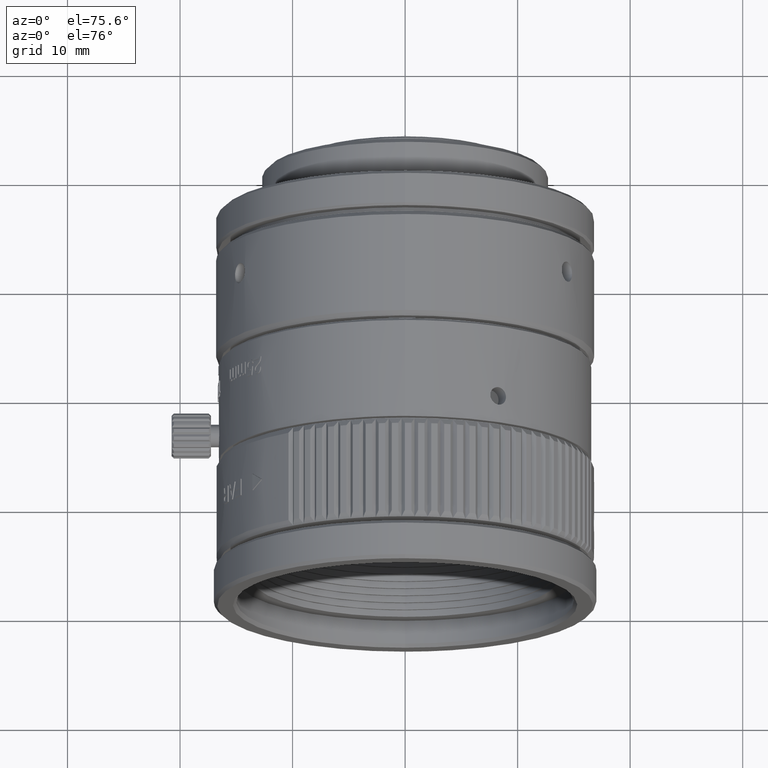
[diagram: clean part render]
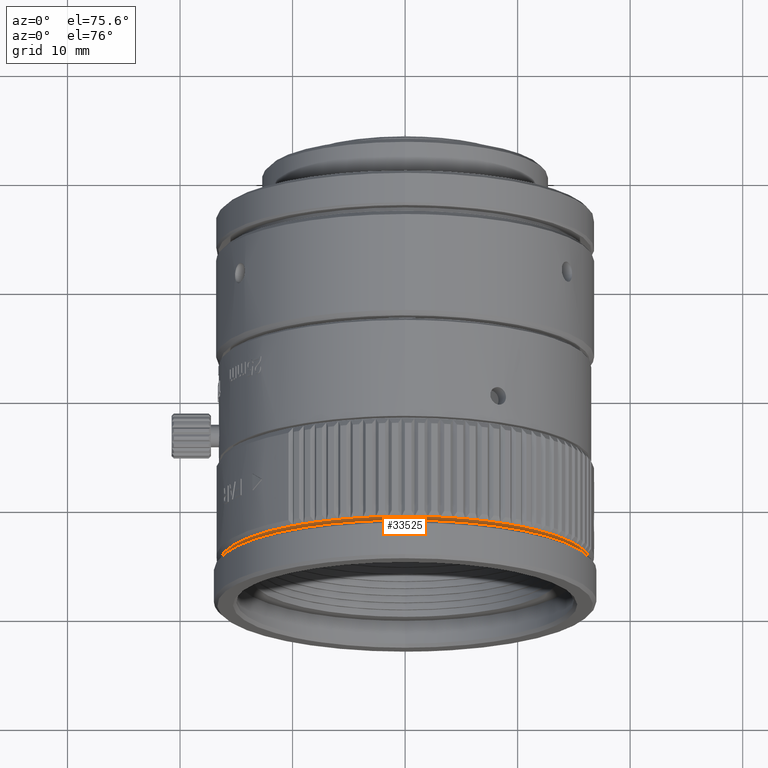
[diagram: same view with one face highlighted and labeled with its STEP entity id]
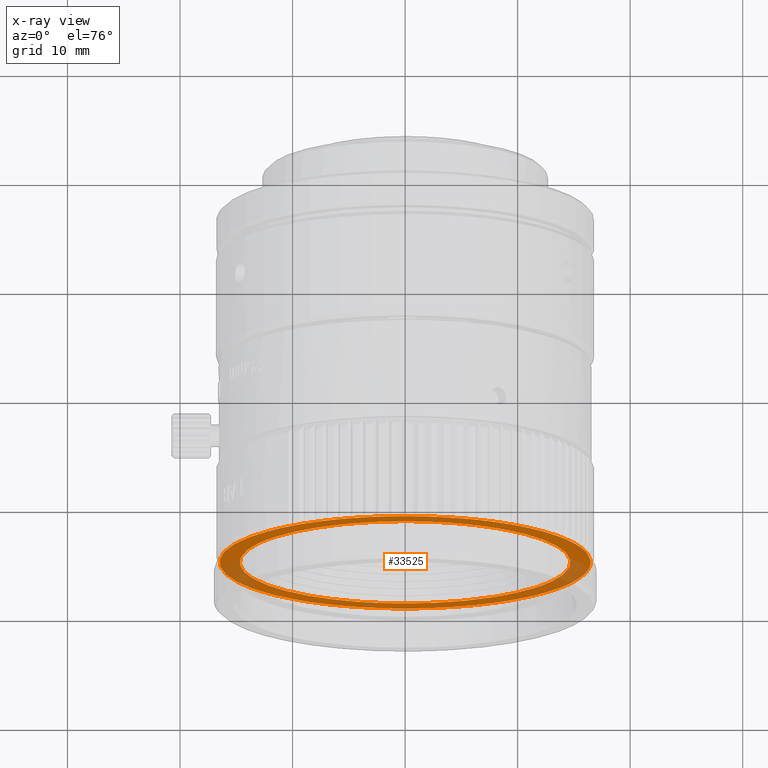
[diagram: x-ray of the same camera — body ghosted, the highlighted face saturated]
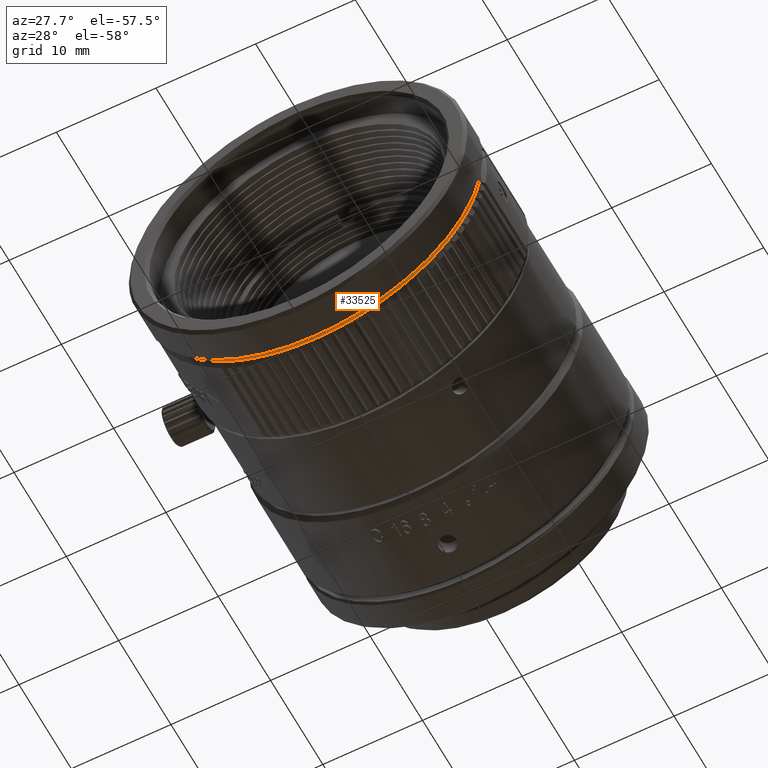
[diagram: same view with one face highlighted and labeled with its STEP entity id]
A machine part, auxiliary view. The second image highlights one B-rep face of the part: STEP entity #33525.
The next image is the same camera in x-ray: the body ghosted, the highlighted face saturated — about 16% of this face is hidden behind the body in this view.
A second angle (auxiliary view) of the same face is appended — the face is thin or edge-on in the first view.
In plain terms, the highlighted planar face has unit normal (-0, 1, 0).
Its self-contained STEP definition (entity closure, byte-faithful):
#86 = VERTEX_POINT ( 'NONE', #4438 ) ;
#198 = CARTESIAN_POINT ( 'NONE',  ( 15.93155087733709863, -9.199999937475869416, 4.293680007250140207 ) ) ;
#259 = ORIENTED_EDGE ( 'NONE', *, *, #23118, .F. ) ;
#415 = CARTESIAN_POINT ( 'NONE',  ( 5.935459309593280608, -9.199999937476059486, -15.39546440176444975 ) ) ;
#543 = ORIENTED_EDGE ( 'NONE', *, *, #50450, .F. ) ;
#941 = B_SPLINE_CURVE_WITH_KNOTS ( 'NONE', 3,
 ( #43347, #13740, #39276, #21910 ),
 .UNSPECIFIED., .F., .F.,
 ( 4, 4 ),
 ( 0.000000000000000000, 1.000000000000000000 ),
 .UNSPECIFIED. ) ;
#1190 = EDGE_CURVE ( 'NONE', #15466, #18875, #2342, .T. ) ;
#1206 = ORIENTED_EDGE ( 'NONE', *, *, #9539, .F. ) ;
#1277 = CARTESIAN_POINT ( 'NONE',  ( 9.949094819651948640, -9.199999927848100612, -13.16303588564140092 ) ) ;
#1289 = VERTEX_POINT ( 'NONE', #8372 ) ;
#1342 = B_SPLINE_CURVE_WITH_KNOTS ( 'NONE', 3,
 ( #40236, #3022, #36447, #6786 ),
 .UNSPECIFIED., .F., .F.,
 ( 4, 4 ),
 ( 0.000000000000000000, 1.000000000000000000 ),
 .UNSPECIFIED. ) ;
#1412 = CARTESIAN_POINT ( 'NONE',  ( -5.712422588870381013, -9.199999874956976242, -15.48436842349715192 ) ) ;
#1539 = ORIENTED_EDGE ( 'NONE', *, *, #22858, .F. ) ;
#1696 = CARTESIAN_POINT ( 'NONE',  ( -7.342695129396945575, -9.199999874953562085, 14.78114561004059979 ) ) ;
#1744 = CARTESIAN_POINT ( 'NONE',  ( 12.05096383454732134, -9.199999937478619216, 11.27050451489287930 ) ) ;
#1785 = CARTESIAN_POINT ( 'NONE',  ( 7.811837254820996002, -9.199999874955198109, 14.53866004873402851 ) ) ;
#1916 = CARTESIAN_POINT ( 'NONE',  ( 10.06638003922740943, -9.199999874954833956, 13.07919837812377573 ) ) ;
#2153 = CARTESIAN_POINT ( 'NONE',  ( -2.747774321877329395, -9.199999874956471757, -16.27412589310003455 ) ) ;
#2162 = CARTESIAN_POINT ( 'NONE',  ( 14.96420035037730045, -9.199999927846599590, -6.951453756656920113 ) ) ;
#2342 = B_SPLINE_CURVE_WITH_KNOTS ( 'NONE', 3,
 ( #47255, #5687, #26359, #38600 ),
 .UNSPECIFIED., .F., .F.,
 ( 4, 4 ),
 ( 0.000000000000000000, 1.000000000000000000 ),
 .UNSPECIFIED. ) ;
#2398 = CARTESIAN_POINT ( 'NONE',  ( -1.605855246161520311, -9.199999874957411450, -16.42615798769747570 ) ) ;
#2404 = CARTESIAN_POINT ( 'NONE',  ( 15.59323044342349895, -9.199999937479638845, 5.394549629026990090 ) ) ;
#2406 = PLANE ( 'NONE',  #21025 ) ;
#2460 = CARTESIAN_POINT ( 'NONE',  ( 12.56572373278263122, -9.199999874955286927, 10.70046841871166521 ) ) ;
#2555 = B_SPLINE_CURVE_WITH_KNOTS ( 'NONE', 3,
 ( #39375, #30425, #2153, #18738 ),
 .UNSPECIFIED., .F., .F.,
 ( 4, 4 ),
 ( 0.000000000000000000, 1.000000000000000000 ),
 .UNSPECIFIED. ) ;
#2567 = CARTESIAN_POINT ( 'NONE',  ( 3.124798156595970156, -9.199999927847779091, 16.20140851709065188 ) ) ;
#2647 = CARTESIAN_POINT ( 'NONE',  ( 15.78602515672115203, -9.199999927849338732, -4.801188520402029702 ) ) ;
#2749 = CARTESIAN_POINT ( 'NONE',  ( 9.759203394441398061, -9.199999874954833956, 13.30997319360167275 ) ) ;
#2900 = CARTESIAN_POINT ( 'NONE',  ( 9.949094819651948640, -9.199999927848100612, -13.16303588564140092 ) ) ;
#2927 = EDGE_CURVE ( 'NONE', #5040, #12389, #35131, .T. ) ;
#2957 = CARTESIAN_POINT ( 'NONE',  ( -9.949094819651760346, -9.199999927848910630, 13.16303588564102078 ) ) ;
#2960 = CARTESIAN_POINT ( 'NONE',  ( 15.83163244203945119, -9.199999874957557111, 4.664424029672824545 ) ) ;
#3022 = CARTESIAN_POINT ( 'NONE',  ( -5.577190647065627616, -9.199999874952938583, 15.53358882534217678 ) ) ;
#3069 = B_SPLINE_CURVE_WITH_KNOTS ( 'NONE', 3,
 ( #9372, #42539, #30058, #5322 ),
 .UNSPECIFIED., .F., .F.,
 ( 4, 4 ),
 ( 0.000000000000000000, 1.000000000000000000 ),
 .UNSPECIFIED. ) ;
#3168 = CARTESIAN_POINT ( 'NONE',  ( 16.30059293973105028, -9.199999927848519832, -2.557473610870109937 ) ) ;
#3187 = CARTESIAN_POINT ( 'NONE',  ( 3.876306453715742339, -9.199999874952613510, 16.04280790838678783 ) ) ;
#3211 = VERTEX_POINT ( 'NONE', #17115 ) ;
#3351 = B_SPLINE_CURVE_WITH_KNOTS ( 'NONE', 3,
 ( #27336, #39839, #36047, #11026 ),
 .UNSPECIFIED., .F., .F.,
 ( 4, 4 ),
 ( 0.000000000000000000, 1.000000000000000000 ),
 .UNSPECIFIED. ) ;
#3608 = CARTESIAN_POINT ( 'NONE',  ( 13.28154120562073714, -9.199999874954366774, 9.797862037805989743 ) ) ;
#3688 = CARTESIAN_POINT ( 'NONE',  ( 12.05096383454732134, -9.199999937478619216, 11.27050451489287930 ) ) ;
#3721 = ORIENTED_EDGE ( 'NONE', *, *, #10032, .F. ) ;
#3901 = ORIENTED_EDGE ( 'NONE', *, *, #14426, .F. ) ;
#4022 = CARTESIAN_POINT ( 'NONE',  ( 0.8395875645580999080, -9.199999953291749577, 16.47862534918185062 ) ) ;
#4056 = B_SPLINE_CURVE_WITH_KNOTS ( 'NONE', 3,
 ( #12958, #29535, #46103, #38758 ),
 .UNSPECIFIED., .F., .F.,
 ( 4, 4 ),
 ( 0.000000000000000000, 1.000000000000000000 ),
 .UNSPECIFIED. ) ;
#4136 = CARTESIAN_POINT ( 'NONE',  ( 8.355889288759364320, -9.199999874954867707, -14.23293896222667598 ) ) ;
#4137 = B_SPLINE_CURVE_WITH_KNOTS ( 'NONE', 3,
 ( #1277, #38532, #35519, #52094 ),
 .UNSPECIFIED., .F., .F.,
 ( 4, 4 ),
 ( 0.000000000000000000, 1.000000000000000000 ),
 .UNSPECIFIED. ) ;
#4438 = CARTESIAN_POINT ( 'NONE',  ( 3.735061306089785038, -9.199999937480939138, -16.07169307824975135 ) ) ;
#4464 = CARTESIAN_POINT ( 'NONE',  ( 10.55364517216780129, -9.199999874952935031, -12.68928724903366856 ) ) ;
#4511 = CARTESIAN_POINT ( 'NONE',  ( 1.070104623326773941E-13, -9.200000318489319540, 14.69999952190885928 ) ) ;
#4519 = CARTESIAN_POINT ( 'NONE',  ( 4.109066584374915898, -9.199999874958027846, -15.98477429035461483 ) ) ;
#4678 = CARTESIAN_POINT ( 'NONE',  ( 12.84465949105813465, -9.200000477733981441, -7.403198770676373108 ) ) ;
#4759 = CARTESIAN_POINT ( 'NONE',  ( 16.56132082110669757, -9.199999874955125279, 1.287837670503699572 ) ) ;
#4776 = CARTESIAN_POINT ( 'NONE',  ( -12.84465949105794458, -9.200000477733981441, 7.403198770676438834 ) ) ;
#4843 = EDGE_CURVE ( 'NONE', #18875, #13178, #3351, .T. ) ;
#4889 = CARTESIAN_POINT ( 'NONE',  ( -5.935459353347069644, -9.199999927846780778, 15.39546438799209938 ) ) ;
#4938 = CARTESIAN_POINT ( 'NONE',  ( 0.3119483729437780295, -9.199999937476329492, -16.49705093568059766 ) ) ;
#4940 = CARTESIAN_POINT ( 'NONE',  ( 1.924225437741865052, -9.200000477733983217, -14.69999952190877579 ) ) ;
#4943 = CARTESIAN_POINT ( 'NONE',  ( -5.935459353347069644, -9.199999927846780778, 15.39546438799209938 ) ) ;
#5040 = VERTEX_POINT ( 'NONE', #34090 ) ;
#5083 = CARTESIAN_POINT ( 'NONE',  ( -9.006652357561669930, -9.199999927848960368, 13.82498516335970073 ) ) ;
#5151 = CARTESIAN_POINT ( 'NONE',  ( 5.349188098983309381, -9.199999927848979908, 15.60884967378429877 ) ) ;
#5322 = CARTESIAN_POINT ( 'NONE',  ( 0.8395875645580999080, -9.199999953291749577, 16.47862534918185062 ) ) ;
#5456 = CARTESIAN_POINT ( 'NONE',  ( 1.924225437741833300, -9.200000477733986770, 14.69999952190887527 ) ) ;
#5584 = CARTESIAN_POINT ( 'NONE',  ( -0.2079780083537485780, -9.199999999999745270, 16.49901690589849679 ) ) ;
#5643 = B_SPLINE_CURVE_WITH_KNOTS ( 'NONE', 3,
 ( #19558, #53250, #7295, #52984 ),
 .UNSPECIFIED., .F., .F.,
 ( 4, 4 ),
 ( 0.000000000000000000, 1.000000000000000000 ),
 .UNSPECIFIED. ) ;
#5687 = CARTESIAN_POINT ( 'NONE',  ( 14.25717433429372427, -9.199999874952542456, -8.314470356557524866 ) ) ;
#5723 = VERTEX_POINT ( 'NONE', #43441 ) ;
#5756 = CARTESIAN_POINT ( 'NONE',  ( 14.13089101135410175, -9.199999937477089773, 8.518680683476830495 ) ) ;
#5786 = EDGE_CURVE ( 'NONE', #32943, #51146, #2555, .T. ) ;
#5844 = CARTESIAN_POINT ( 'NONE',  ( -1.844426889710508943, -9.199999874952901280, 16.40108309707090584 ) ) ;
#5943 = ORIENTED_EDGE ( 'NONE', *, *, #40679, .F. ) ;
#6124 = B_SPLINE_CURVE_WITH_KNOTS ( 'NONE', 3,
 ( #19519, #23863, #15985, #40428 ),
 .UNSPECIFIED., .F., .F.,
 ( 4, 4 ),
 ( 0.000000000000000000, 1.000000000000000000 ),
 .UNSPECIFIED. ) ;
#6187 = DIRECTION ( 'NONE',  ( -0.000000000000000000, 1.000000000000000000, 0.000000000000000000 ) ) ;
#6214 = EDGE_CURVE ( 'NONE', #9852, #12312, #36151, .T. ) ;
#6236 = B_SPLINE_CURVE_WITH_KNOTS ( 'NONE', 3,
 ( #15075, #19976, #22950, #53130 ),
 .UNSPECIFIED., .F., .F.,
 ( 4, 4 ),
 ( 0.000000000000000000, 1.000000000000000000 ),
 .UNSPECIFIED. ) ;
#6245 = CARTESIAN_POINT ( 'NONE',  ( 10.36513362019016071, -9.199999937473910094, 12.83799074612124080 ) ) ;
#6247 = EDGE_CURVE ( 'NONE', #3211, #18086, #16711, .T. ) ;
#6349 = ORIENTED_EDGE ( 'NONE', *, *, #29162, .F. ) ;
#6379 = CARTESIAN_POINT ( 'NONE',  ( -2.225700933116942615, -9.199999874952901280, 16.35370577773841205 ) ) ;
#6612 = CARTESIAN_POINT ( 'NONE',  ( 1.079502324526709245, -9.199999874957084600, -16.46912602537756598 ) ) ;
#6786 = CARTESIAN_POINT ( 'NONE',  ( -4.847067565316350191, -9.199999927848148573, 15.77199852505629885 ) ) ;
#6804 = ORIENTED_EDGE ( 'NONE', *, *, #53495, .F. ) ;
#7000 = CARTESIAN_POINT ( 'NONE',  ( -16.39270502646890293, -9.199999874954841061, 2.282235586704130181 ) ) ;
#7024 = B_SPLINE_CURVE_WITH_KNOTS ( 'NONE', 3,
 ( #35876, #48344, #47525, #52456 ),
 .UNSPECIFIED., .F., .F.,
 ( 4, 4 ),
 ( 0.000000000000000000, 1.000000000000000000 ),
 .UNSPECIFIED. ) ;
#7198 = CARTESIAN_POINT ( 'NONE',  ( 4.847067520706909605, -9.199999937479100609, -15.77199853574235178 ) ) ;
#7295 = CARTESIAN_POINT ( 'NONE',  ( 2.747774257374685725, -9.199999874953558532, 16.27412590399273640 ) ) ;
#7537 = CARTESIAN_POINT ( 'NONE',  ( -15.64212040757001176, -9.199999874954841061, -5.408645534061132132 ) ) ;
#7673 = CARTESIAN_POINT ( 'NONE',  ( 7.127087234109958480, -9.199999874956503731, 14.88630460745129369 ) ) ;
#7776 = CARTESIAN_POINT ( 'NONE',  ( 3.735061306089785038, -9.199999937480939138, -16.07169307824975135 ) ) ;
#7884 = VERTEX_POINT ( 'NONE', #2162 ) ;
#8106 = CARTESIAN_POINT ( 'NONE',  ( -2.604858293897534871, -9.199999927847681391, 16.29308794323074849 ) ) ;
#8122 = EDGE_CURVE ( 'NONE', #32082, #30076, #4137, .T. ) ;
#8232 = ORIENTED_EDGE ( 'NONE', *, *, #44865, .F. ) ;
#8276 = CARTESIAN_POINT ( 'NONE',  ( 16.30059293973105028, -9.199999927848519832, -2.557473610870109937 ) ) ;
#8372 = CARTESIAN_POINT ( 'NONE',  ( 9.444351711232640056, -9.199999937478340328, 13.52975321712523993 ) ) ;
#8533 = CARTESIAN_POINT ( 'NONE',  ( 16.59816853469539311, -9.199999874955127055, -0.6608135130568735249 ) ) ;
#8538 = CARTESIAN_POINT ( 'NONE',  ( 1.070104623326773941E-13, -9.200000318489319540, 14.69999952190885928 ) ) ;
#8638 = CARTESIAN_POINT ( 'NONE',  ( -7.127087234109708014, -9.199999874956512613, -14.88630460745141804 ) ) ;
#8717 = EDGE_CURVE ( 'NONE', #21992, #29036, #19564, .T. ) ;
#8864 = CARTESIAN_POINT ( 'NONE',  ( 12.80779894460214052, -9.199999937478228418, 10.40241739003077903 ) ) ;
#9005 = ORIENTED_EDGE ( 'NONE', *, *, #46774, .F. ) ;
#9058 = CARTESIAN_POINT ( 'NONE',  ( 10.66388726108302265, -9.199999874951213741, 12.59678315251387026 ) ) ;
#9372 = CARTESIAN_POINT ( 'NONE',  ( -1.347111479062251896E-15, -9.199999999999832312, 16.50000000000200018 ) ) ;
#9498 = VERTEX_POINT ( 'NONE', #28134 ) ;
#9507 = EDGE_CURVE ( 'NONE', #12389, #47632, #15617, .T. ) ;
#9513 = CARTESIAN_POINT ( 'NONE',  ( 7.403198770676512552, -9.200000477733984994, 12.84465949105809202 ) ) ;
#9539 = EDGE_CURVE ( 'NONE', #86, #11266, #9691, .T. ) ;
#9556 = CARTESIAN_POINT ( 'NONE',  ( 8.477557870080179470, -9.199999937477850054, 14.15560009046699896 ) ) ;
#9607 = CARTESIAN_POINT ( 'NONE',  ( 11.78868731701994044, -9.199999874955729240, 11.55094319308975415 ) ) ;
#9651 = CARTESIAN_POINT ( 'NONE',  ( 8.020330390528501496, -9.199999927848100612, -14.41958050304813987 ) ) ;
#9691 = B_SPLINE_CURVE_WITH_KNOTS ( 'NONE', 3,
 ( #33020, #49584, #20525, #46284 ),
 .UNSPECIFIED., .F., .F.,
 ( 4, 4 ),
 ( 0.000000000000000000, 1.000000000000000000 ),
 .UNSPECIFIED. ) ;
#9852 = VERTEX_POINT ( 'NONE', #36224 ) ;
#9878 = CARTESIAN_POINT ( 'NONE',  ( -11.75510220093944014, -9.200000477733981441, -9.033836489821885252 ) ) ;
#10032 = EDGE_CURVE ( 'NONE', #30076, #29235, #47214, .T. ) ;
#10037 = CARTESIAN_POINT ( 'NONE',  ( -4.247339476668774871, -9.199999937478969159, -15.94396778508039958 ) ) ;
#10205 = VERTEX_POINT ( 'NONE', #38762 ) ;
#10227 = CARTESIAN_POINT ( 'NONE',  ( 14.69070199649634034, -9.199999937478580136, 7.512208477664440665 ) ) ;
#10244 = CARTESIAN_POINT ( 'NONE',  ( 5.935459309593280608, -9.199999937476059486, -15.39546440176444975 ) ) ;
#10455 = CARTESIAN_POINT ( 'NONE',  ( 8.477557870080179470, -9.199999937477850054, 14.15560009046699896 ) ) ;
#10472 = CARTESIAN_POINT ( 'NONE',  ( -1.461964628688495749, -9.199999927847681391, 16.43510452907329977 ) ) ;
#10482 = ORIENTED_EDGE ( 'NONE', *, *, #11429, .F. ) ;
#10508 = EDGE_CURVE ( 'NONE', #45822, #26661, #27717, .T. ) ;
#10620 = ORIENTED_EDGE ( 'NONE', *, *, #35603, .F. ) ;
#10622 = CARTESIAN_POINT ( 'NONE',  ( 15.02839772700298226, -9.199999874956924728, 6.822367555874101264 ) ) ;
#10735 = VERTEX_POINT ( 'NONE', #45176 ) ;
#11026 = CARTESIAN_POINT ( 'NONE',  ( 13.19190816543079947, -9.199999927848260484, -9.910780010269220952 ) ) ;
#11081 = CARTESIAN_POINT ( 'NONE',  ( -1.987033222595099957, -9.199999937480139778, -16.37991759240690115 ) ) ;
#11266 = VERTEX_POINT ( 'NONE', #20621 ) ;
#11405 = CARTESIAN_POINT ( 'NONE',  ( -3.361056085211679978, -9.199999874954613688, 16.15861192369377619 ) ) ;
#11429 = EDGE_CURVE ( 'NONE', #52990, #7884, #29529, .T. ) ;
#11743 = EDGE_CURVE ( 'NONE', #33756, #33774, #49553, .T. ) ;
#11783 = VERTEX_POINT ( 'NONE', #49216 ) ;
#12068 = CARTESIAN_POINT ( 'NONE',  ( 0.6958521707151801294, -9.199999874957084600, -16.48979160162244639 ) ) ;
#12119 = CARTESIAN_POINT ( 'NONE',  ( 16.24107785822080885, -9.199999874952844436, -2.936805630565434200 ) ) ;
#12179 = CARTESIAN_POINT ( 'NONE',  ( -1.461964628688495749, -9.199999927847681391, 16.43510452907329977 ) ) ;
#12183 = CARTESIAN_POINT ( 'NONE',  ( 14.44283940895876128, -9.199999927847359871, -7.978370213530500799 ) ) ;
#12266 = EDGE_CURVE ( 'NONE', #22946, #1289, #50224, .T. ) ;
#12280 = CARTESIAN_POINT ( 'NONE',  ( 13.50223574563321982, -9.199999937478660073, 9.483650733293979229 ) ) ;
#12312 = VERTEX_POINT ( 'NONE', #47705 ) ;
#12351 = CARTESIAN_POINT ( 'NONE',  ( 8.020330390528501496, -9.199999927848100612, -14.41958050304813987 ) ) ;
#12359 = CARTESIAN_POINT ( 'NONE',  ( 9.949094819651948640, -9.199999927848100612, -13.16303588564140092 ) ) ;
#12389 = VERTEX_POINT ( 'NONE', #36056 ) ;
#12528 = B_SPLINE_CURVE_WITH_KNOTS ( 'NONE', 3,
 ( #48622, #11405, #40480, #8106 ),
 .UNSPECIFIED., .F., .F.,
 ( 4, 4 ),
 ( 0.000000000000000000, 1.000000000000000000 ),
 .UNSPECIFIED. ) ;
#12565 = CARTESIAN_POINT ( 'NONE',  ( 14.31739788137659986, -9.200000477733981441, -3.847693774942002154 ) ) ;
#12670 = EDGE_CURVE ( 'NONE', #10205, #34224, #48230, .T. ) ;
#12687 = CARTESIAN_POINT ( 'NONE',  ( 13.19190816543079947, -9.199999927848260484, -9.910780010269220952 ) ) ;
#12745 = CARTESIAN_POINT ( 'NONE',  ( -6.778642353925730113, -9.199999874956512613, -15.04817082392418648 ) ) ;
#12766 = CARTESIAN_POINT ( 'NONE',  ( -3.735061351335230206, -9.199999927848930170, 16.07169307070210351 ) ) ;
#12958 = CARTESIAN_POINT ( 'NONE',  ( 16.08248517380720344, -9.199999927848159231, -3.688315617103949506 ) ) ;
#13094 = CARTESIAN_POINT ( 'NONE',  ( -6.994934180035588867, -9.199999927847089864, 14.94392509597549967 ) ) ;
#13178 = VERTEX_POINT ( 'NONE', #12687 ) ;
#13214 = B_SPLINE_CURVE_WITH_KNOTS ( 'NONE', 3,
 ( #198, #16822, #33388, #33655 ),
 .UNSPECIFIED., .F., .F.,
 ( 4, 4 ),
 ( 0.000000000000000000, 1.000000000000000000 ),
 .UNSPECIFIED. ) ;
#13427 = CARTESIAN_POINT ( 'NONE',  ( 10.36513362019016071, -9.199999937473910094, 12.83799074612124080 ) ) ;
#13614 = CARTESIAN_POINT ( 'NONE',  ( 14.69999952190892323, -9.200000477733983217, 1.924225437741824196 ) ) ;
#13709 = CARTESIAN_POINT ( 'NONE',  ( -14.31739788137637781, -9.200000477733979665, -3.847693774942068323 ) ) ;
#13740 = CARTESIAN_POINT ( 'NONE',  ( 2.225700868298572388, -9.199999874952903056, -16.35370578656002039 ) ) ;
#13743 = CARTESIAN_POINT ( 'NONE',  ( 8.148142124310426837, -9.199999874955198109, 14.35288184409326817 ) ) ;
#13794 = CARTESIAN_POINT ( 'NONE',  ( -7.469462219145849957, -9.199999937478629874, -14.71248230308252047 ) ) ;
#13813 = CARTESIAN_POINT ( 'NONE',  ( -0.8395876180678319978, -9.199999937478688494, -16.47862536722465165 ) ) ;
#13826 = ORIENTED_EDGE ( 'NONE', *, *, #50634, .F. ) ;
#14016 = CARTESIAN_POINT ( 'NONE',  ( -2.604858293897534871, -9.199999927847681391, 16.29308794323074849 ) ) ;
#14074 = EDGE_CURVE ( 'NONE', #20418, #47782, #1342, .T. ) ;
#14244 = CARTESIAN_POINT ( 'NONE',  ( -12.84465949105789129, -9.200000477733979665, -7.403198770676431728 ) ) ;
#14300 = VERTEX_POINT ( 'NONE', #18177 ) ;
#14317 = ORIENTED_EDGE ( 'NONE', *, *, #12266, .F. ) ;
#14322 = CARTESIAN_POINT ( 'NONE',  ( 14.13089101135410175, -9.199999937477089773, 8.518680683476830495 ) ) ;
#14377 = ORIENTED_EDGE ( 'NONE', *, *, #5786, .F. ) ;
#14426 = EDGE_CURVE ( 'NONE', #48395, #32943, #25239, .T. ) ;
#14468 = VERTEX_POINT ( 'NONE', #27386 ) ;
#14627 = EDGE_CURVE ( 'NONE', #39779, #53062, #38235, .T. ) ;
#14632 = CARTESIAN_POINT ( 'NONE',  ( 16.84095090230999858, -9.199999999999999289, 17.48151894033999909 ) ) ;
#14714 = CARTESIAN_POINT ( 'NONE',  ( -4.618372475170181346, -9.199999874955651080, -15.84512773659612783 ) ) ;
#14889 = EDGE_CURVE ( 'NONE', #42073, #20703, #30427, .T. ) ;
#15075 = CARTESIAN_POINT ( 'NONE',  ( 14.96420035037730045, -9.199999927846599590, -6.951453756656920113 ) ) ;
#15433 = EDGE_CURVE ( 'NONE', #49335, #3211, #17349, .T. ) ;
#15466 = VERTEX_POINT ( 'NONE', #12183 ) ;
#15481 = B_SPLINE_CURVE_WITH_KNOTS ( 'NONE', 3,
 ( #29186, #4464, #28399, #12359 ),
 .UNSPECIFIED., .F., .F.,
 ( 4, 4 ),
 ( 0.000000000000000000, 1.000000000000000000 ),
 .UNSPECIFIED. ) ;
#15617 = B_SPLINE_CURVE_WITH_KNOTS ( 'NONE', 3,
 ( #16182, #23788, #19719, #48770 ),
 .UNSPECIFIED., .F., .F.,
 ( 4, 4 ),
 ( 0.000000000000000000, 1.000000000000000000 ),
 .UNSPECIFIED. ) ;
#15657 = CARTESIAN_POINT ( 'NONE',  ( 15.41265721188064930, -9.199999927848239167, -5.890670515840720434 ) ) ;
#15671 = VERTEX_POINT ( 'NONE', #10472 ) ;
#15837 = EDGE_CURVE ( 'NONE', #17961, #41527, #34171, .T. ) ;
#15965 = CARTESIAN_POINT ( 'NONE',  ( 4.480036446948258089, -9.199999874958029622, -15.88479495437142219 ) ) ;
#15985 = CARTESIAN_POINT ( 'NONE',  ( 15.46769360875015842, -9.199999874954887247, 5.757420579938678173 ) ) ;
#15996 = CARTESIAN_POINT ( 'NONE',  ( -15.40699596774268620, -9.199999874954841061, 6.045978217625182616 ) ) ;
#16103 = CARTESIAN_POINT ( 'NONE',  ( 15.67429645841833796, -9.199999874955173240, -5.168546008509598444 ) ) ;
#16174 = ORIENTED_EDGE ( 'NONE', *, *, #4843, .F. ) ;
#16182 = CARTESIAN_POINT ( 'NONE',  ( 11.68421143503734072, -9.199999927846150172, -11.65028774745590034 ) ) ;
#16261 = CARTESIAN_POINT ( 'NONE',  ( -7.469462219145849957, -9.199999937478629874, -14.71248230308252047 ) ) ;
#16287 = EDGE_LOOP ( 'NONE', ( #48666, #41249, #26416, #259, #25586, #23232, #35156, #49900, #14317, #45789, #42499, #13826, #37620, #543, #49410, #28353, #20639, #49533, #51989, #38509, #5943, #27534, #25441, #31390, #44935, #22671, #35591, #6804, #8232, #30911, #34817, #16771, #51936, #30828, #14377, #3901, #43862, #24230, #36548, #1206, #49436, #47625, #20307, #1539, #3721, #28167, #23262, #26017, #35842, #38604, #16174, #18334, #9005, #10482, #49936, #6349, #35253, #24830, #49477, #37558, #46904 ) ) ;
#16385 = B_SPLINE_CURVE_WITH_KNOTS ( 'NONE', 3,
 ( #14322, #26554, #18691, #10227 ),
 .UNSPECIFIED., .F., .F.,
 ( 4, 4 ),
 ( 0.000000000000000000, 1.000000000000000000 ),
 .UNSPECIFIED. ) ;
#16467 = CARTESIAN_POINT ( 'NONE',  ( 16.16831620757026400, -9.199999874952844436, -3.314059190861238680 ) ) ;
#16523 = CARTESIAN_POINT ( 'NONE',  ( 1.605855177867556050, -9.199999874954334800, 16.42615799445094282 ) ) ;
#16711 = B_SPLINE_CURVE_WITH_KNOTS ( 'NONE', 3,
 ( #40335, #41136, #37086, #44665 ),
 .UNSPECIFIED., .F., .F.,
 ( 4, 4 ),
 ( 0.000000000000000000, 1.000000000000000000 ),
 .UNSPECIFIED. ) ;
#16743 = EDGE_CURVE ( 'NONE', #28732, #51142, #6124, .T. ) ;
#16771 = ORIENTED_EDGE ( 'NONE', *, *, #23005, .F. ) ;
#16822 = CARTESIAN_POINT ( 'NONE',  ( 16.03146938368836061, -9.199999874952018430, 3.922935980663895261 ) ) ;
#17013 = CARTESIAN_POINT ( 'NONE',  ( -11.75510220093950409, -9.200000477733981441, 9.033836489821899463 ) ) ;
#17022 = EDGE_CURVE ( 'NONE', #52712, #11783, #50859, .T. ) ;
#17115 = CARTESIAN_POINT ( 'NONE',  ( -9.006652357561669930, -9.199999927848960368, 13.82498516335970073 ) ) ;
#17349 = B_SPLINE_CURVE_WITH_KNOTS ( 'NONE', 3,
 ( #33102, #46114, #41248, #5083 ),
 .UNSPECIFIED., .F., .F.,
 ( 4, 4 ),
 ( 0.000000000000000000, 1.000000000000000000 ),
 .UNSPECIFIED. ) ;
#17457 = CARTESIAN_POINT ( 'NONE',  ( 3.847693774942172240, -9.200000477733981441, -14.31739788137644531 ) ) ;
#17532 = CARTESIAN_POINT ( 'NONE',  ( 11.23541764004921895, -9.199999937476640355, 12.08368287466445956 ) ) ;
#17915 = EDGE_CURVE ( 'NONE', #26661, #22946, #28028, .T. ) ;
#17961 = VERTEX_POINT ( 'NONE', #50979 ) ;
#18018 = CARTESIAN_POINT ( 'NONE',  ( 13.50223574563321982, -9.199999937478660073, 9.483650733293979229 ) ) ;
#18030 = CARTESIAN_POINT ( 'NONE',  ( 12.05096383454732134, -9.199999937478619216, 11.27050451489287930 ) ) ;
#18086 = VERTEX_POINT ( 'NONE', #45765 ) ;
#18177 = CARTESIAN_POINT ( 'NONE',  ( -1.347111479062251896E-15, -9.199999999999832312, 16.50000000000200018 ) ) ;
#18334 = ORIENTED_EDGE ( 'NONE', *, *, #1190, .F. ) ;
#18339 = CARTESIAN_POINT ( 'NONE',  ( -7.403198770676276297, -9.200000477733981441, -12.84465949105800497 ) ) ;
#18365 = EDGE_CURVE ( 'NONE', #12312, #48395, #36306, .T. ) ;
#18477 = CARTESIAN_POINT ( 'NONE',  ( 3.124798156595970156, -9.199999927847779091, 16.20140851709065188 ) ) ;
#18691 = CARTESIAN_POINT ( 'NONE',  ( 14.51588500218283428, -9.199999874953254775, 7.854076642859440405 ) ) ;
#18738 = CARTESIAN_POINT ( 'NONE',  ( -3.124798200998539777, -9.199999937480239254, -16.20140850558270174 ) ) ;
#18766 = VERTEX_POINT ( 'NONE', #12766 ) ;
#18875 = VERTEX_POINT ( 'NONE', #21988 ) ;
#18876 = CARTESIAN_POINT ( 'NONE',  ( -14.69999952190872250, -9.200000477733981441, 1.924225437741759137 ) ) ;
#18937 = CARTESIAN_POINT ( 'NONE',  ( 8.806973669854849973, -9.199999874953839196, 13.95831838320715512 ) ) ;
#19077 = CARTESIAN_POINT ( 'NONE',  ( 14.86551906118035049, -9.199999874956924728, 7.170340323172648134 ) ) ;
#19149 = CARTESIAN_POINT ( 'NONE',  ( 4.618372412366469781, -9.199999874954565726, 15.84512775490216541 ) ) ;
#19223 = EDGE_CURVE ( 'NONE', #35041, #20418, #51714, .T. ) ;
#19316 = CARTESIAN_POINT ( 'NONE',  ( -3.124798200998539777, -9.199999937480239254, -16.20140850558270174 ) ) ;
#19487 = VERTEX_POINT ( 'NONE', #8864 ) ;
#19519 = CARTESIAN_POINT ( 'NONE',  ( 15.17894135821730117, -9.199999937478468226, 6.469137547274649513 ) ) ;
#19558 = CARTESIAN_POINT ( 'NONE',  ( 1.987033177496705383, -9.199999927848571346, 16.37991760078924841 ) ) ;
#19564 = B_SPLINE_CURVE_WITH_KNOTS ( 'NONE', 3,
 ( #18018, #38409, #51683, #5756 ),
 .UNSPECIFIED., .F., .F.,
 ( 4, 4 ),
 ( 0.000000000000000000, 1.000000000000000000 ),
 .UNSPECIFIED. ) ;
#19719 = CARTESIAN_POINT ( 'NONE',  ( 11.13248746473923845, -9.199999874952073498, -12.18462802698353897 ) ) ;
#19782 = EDGE_CURVE ( 'NONE', #14468, #46759, #39990, .T. ) ;
#19794 = B_SPLINE_CURVE_WITH_KNOTS ( 'NONE', 3,
 ( #44054, #19077, #10622, #31302 ),
 .UNSPECIFIED., .F., .F.,
 ( 4, 4 ),
 ( 0.000000000000000000, 1.000000000000000000 ),
 .UNSPECIFIED. ) ;
#19802 = CARTESIAN_POINT ( 'NONE',  ( -1.223062656944586379, -9.199999874957413226, -16.45908730900986683 ) ) ;
#19804 = CARTESIAN_POINT ( 'NONE',  ( -13.94730415530819201, -9.199999874954841061, -8.910784710526929331 ) ) ;
#19976 = CARTESIAN_POINT ( 'NONE',  ( 14.80243270730304594, -9.199999874952297318, -7.299686517535541874 ) ) ;
#20068 = B_SPLINE_CURVE_WITH_KNOTS ( 'NONE', 3,
 ( #29112, #45672, #3608, #12280 ),
 .UNSPECIFIED., .F., .F.,
 ( 4, 4 ),
 ( 0.000000000000000000, 1.000000000000000000 ),
 .UNSPECIFIED. ) ;
#20079 = CARTESIAN_POINT ( 'NONE',  ( -14.27420734859661877, -9.199999874954842838, 8.377134469931101890 ) ) ;
#20307 = ORIENTED_EDGE ( 'NONE', *, *, #23984, .F. ) ;
#20418 = VERTEX_POINT ( 'NONE', #4889 ) ;
#20525 = CARTESIAN_POINT ( 'NONE',  ( 2.984015616606758403, -9.199999874957859092, -16.23247017888117938 ) ) ;
#20590 = B_SPLINE_CURVE_WITH_KNOTS ( 'NONE', 3,
 ( #18030, #53015, #2460, #48351 ),
 .UNSPECIFIED., .F., .F.,
 ( 4, 4 ),
 ( 0.000000000000000000, 1.000000000000000000 ),
 .UNSPECIFIED. ) ;
#20607 = CARTESIAN_POINT ( 'NONE',  ( 1.223062585305675576, -9.199999874954334800, 16.45908731441005557 ) ) ;
#20621 = CARTESIAN_POINT ( 'NONE',  ( 2.604858248236630480, -9.199999937475638490, -16.29308794760584789 ) ) ;
#20639 = ORIENTED_EDGE ( 'NONE', *, *, #24987, .F. ) ;
#20703 = VERTEX_POINT ( 'NONE', #8538 ) ;
#20726 = CARTESIAN_POINT ( 'NONE',  ( 8.020330390528501496, -9.199999927848100612, -14.41958050304813987 ) ) ;
#21025 = AXIS2_PLACEMENT_3D ( 'NONE', #14632, #6187, #51584 ) ;
#21100 = CARTESIAN_POINT ( 'NONE',  ( -1.924225437741686973, -9.200000477733981441, 14.69999952190886283 ) ) ;
#21117 = EDGE_CURVE ( 'NONE', #46382, #28732, #19794, .T. ) ;
#21177 = CARTESIAN_POINT ( 'NONE',  ( 15.59323044342349895, -9.199999937479638845, 5.394549629026990090 ) ) ;
#21356 = CARTESIAN_POINT ( 'NONE',  ( -14.31739788137640268, -9.200000477733981441, 3.847693774942066991 ) ) ;
#21503 = CARTESIAN_POINT ( 'NONE',  ( -0.3119484184856015085, -9.199999940351910155, 16.49705092270074758 ) ) ;
#21519 = CARTESIAN_POINT ( 'NONE',  ( 12.84465949105812044, -9.200000477733984994, 7.403198770676497453 ) ) ;
#21594 = CARTESIAN_POINT ( 'NONE',  ( 10.95421760164604841, -9.199999874951215517, 12.34514293332943957 ) ) ;
#21621 = EDGE_CURVE ( 'NONE', #31420, #17961, #13214, .T. ) ;
#21873 = CARTESIAN_POINT ( 'NONE',  ( 11.23541764004921895, -9.199999937476640355, 12.08368287466445956 ) ) ;
#21878 = CARTESIAN_POINT ( 'NONE',  ( -3.847693774941903566, -9.200000477733979665, -14.31739788137646485 ) ) ;
#21910 = CARTESIAN_POINT ( 'NONE',  ( 1.461964582833909843, -9.199999937478468226, -16.43510453025140094 ) ) ;
#21988 = CARTESIAN_POINT ( 'NONE',  ( 13.85111440573372121, -9.199999927847670733, -8.966416852701220463 ) ) ;
#21992 = VERTEX_POINT ( 'NONE', #46778 ) ;
#22295 = CARTESIAN_POINT ( 'NONE',  ( 16.30059293973105028, -9.199999927848519832, -2.557473610870109937 ) ) ;
#22409 = CARTESIAN_POINT ( 'NONE',  ( -14.69999952190871007, -9.200000477733977888, -1.924225437741761802 ) ) ;
#22447 = CARTESIAN_POINT ( 'NONE',  ( -1.461964628688495749, -9.199999927847681391, 16.43510452907329977 ) ) ;
#22671 = ORIENTED_EDGE ( 'NONE', *, *, #6247, .F. ) ;
#22858 = EDGE_CURVE ( 'NONE', #29235, #24011, #33709, .T. ) ;
#22913 = B_SPLINE_CURVE_WITH_KNOTS ( 'NONE', 3,
 ( #35821, #52681, #48578, #52409, #19804, #44769, #7537, #45042, #40714, #27945, #7000, #23599, #15996, #20079, #36379, #23876, #40171, #2957 ),
 .UNSPECIFIED., .F., .F.,
 ( 4, 2, 2, 2, 2, 2, 2, 2, 4 ),
 ( 0.000000000000000000, 0.1250000000000000000, 0.2500000000000000000, 0.3750000000000000000, 0.5000000000000000000, 0.6250000000000000000, 0.7500000000000000000, 0.8750000000000000000, 1.000000000000000000 ),
 .UNSPECIFIED. ) ;
#22946 = VERTEX_POINT ( 'NONE', #9556 ) ;
#22950 = CARTESIAN_POINT ( 'NONE',  ( 14.62850454576589776, -9.199999874952297318, -7.642270085716129202 ) ) ;
#23005 = EDGE_CURVE ( 'NONE', #33774, #10735, #23999, .T. ) ;
#23118 = EDGE_CURVE ( 'NONE', #19487, #21992, #20068, .T. ) ;
#23232 = ORIENTED_EDGE ( 'NONE', *, *, #45650, .F. ) ;
#23262 = ORIENTED_EDGE ( 'NONE', *, *, #36546, .F. ) ;
#23401 = EDGE_CURVE ( 'NONE', #13178, #5040, #7024, .T. ) ;
#23599 = CARTESIAN_POINT ( 'NONE',  ( -15.83541306531285819, -9.199999874954842838, 4.813426057285648874 ) ) ;
#23788 = CARTESIAN_POINT ( 'NONE',  ( 11.41309695577228744, -9.199999874952073498, -11.92219171069943862 ) ) ;
#23863 = CARTESIAN_POINT ( 'NONE',  ( 15.32948506037661396, -9.199999874954887247, 6.115907544441972377 ) ) ;
#23872 = CARTESIAN_POINT ( 'NONE',  ( -0.8395876180678319978, -9.199999937478688494, -16.47862536722465165 ) ) ;
#23876 = CARTESIAN_POINT ( 'NONE',  ( -11.92420666457881673, -9.199999874954844614, 11.47792110002729338 ) ) ;
#23927 = B_SPLINE_CURVE_WITH_KNOTS ( 'NONE', 3,
 ( #44877, #16103, #44613, #41613 ),
 .UNSPECIFIED., .F., .F.,
 ( 4, 4 ),
 ( 0.000000000000000000, 1.000000000000000000 ),
 .UNSPECIFIED. ) ;
#23984 = EDGE_CURVE ( 'NONE', #24011, #52712, #38134, .T. ) ;
#23999 = B_SPLINE_CURVE_WITH_KNOTS ( 'NONE', 3,
 ( #46788, #1412, #42984, #26156 ),
 .UNSPECIFIED., .F., .F.,
 ( 4, 4 ),
 ( 0.000000000000000000, 1.000000000000000000 ),
 .UNSPECIFIED. ) ;
#24011 = VERTEX_POINT ( 'NONE', #37962 ) ;
#24230 = ORIENTED_EDGE ( 'NONE', *, *, #6214, .F. ) ;
#24392 = EDGE_CURVE ( 'NONE', #42331, #19487, #20590, .T. ) ;
#24573 = CARTESIAN_POINT ( 'NONE',  ( 0.3119483729437780295, -9.199999937476329492, -16.49705093568059766 ) ) ;
#24602 = CARTESIAN_POINT ( 'NONE',  ( 12.46843227459473979, -9.199999927847320791, -10.80685884385431805 ) ) ;
#24720 = CARTESIAN_POINT ( 'NONE',  ( -9.129500085130837661, -9.199999874953860513, -13.74953328313695522 ) ) ;
#24830 = ORIENTED_EDGE ( 'NONE', *, *, #15837, .F. ) ;
#24987 = EDGE_CURVE ( 'NONE', #14300, #39779, #3069, .T. ) ;
#25063 = CARTESIAN_POINT ( 'NONE',  ( 9.033836489821968740, -9.200000477733984994, 11.75510220093964442 ) ) ;
#25080 = B_SPLINE_CURVE_WITH_KNOTS ( 'NONE', 3,
 ( #30782, #50893, #39191, #34317 ),
 .UNSPECIFIED., .F., .F.,
 ( 4, 4 ),
 ( 0.000000000000000000, 1.000000000000000000 ),
 .UNSPECIFIED. ) ;
#25124 = CARTESIAN_POINT ( 'NONE',  ( 12.21694527824904242, -9.199999874952402124, -11.09701245276345816 ) ) ;
#25180 = CARTESIAN_POINT ( 'NONE',  ( 6.293728057317538926, -9.199999874952681012, -15.25734001934118567 ) ) ;
#25239 = B_SPLINE_CURVE_WITH_KNOTS ( 'NONE', 3,
 ( #23872, #19802, #2398, #11081 ),
 .UNSPECIFIED., .F., .F.,
 ( 4, 4 ),
 ( 0.000000000000000000, 1.000000000000000000 ),
 .UNSPECIFIED. ) ;
#25241 = EDGE_CURVE ( 'NONE', #11783, #86, #32806, .T. ) ;
#25424 = CARTESIAN_POINT ( 'NONE',  ( -7.403198770676349127, -9.200000477733983217, 12.84465949105805649 ) ) ;
#25441 = ORIENTED_EDGE ( 'NONE', *, *, #14074, .F. ) ;
#25583 = CARTESIAN_POINT ( 'NONE',  ( 11.75510220093967284, -9.200000477733981441, 9.033836489821942095 ) ) ;
#25586 = ORIENTED_EDGE ( 'NONE', *, *, #24392, .F. ) ;
#25681 = CARTESIAN_POINT ( 'NONE',  ( 6.424976099109170669, -9.199999937478590795, 15.19768678081084978 ) ) ;
#25844 = B_SPLINE_CURVE_WITH_KNOTS ( 'NONE', 3,
 ( #4511, #21100, #41995, #25424, #37682, #17013, #4776, #21356, #18876, #22409, #13709, #14244, #9878, #38980, #18339, #21878, #35442, #35164 ),
 .UNSPECIFIED., .F., .F.,
 ( 4, 2, 2, 2, 2, 2, 2, 2, 4 ),
 ( 0.000000000000000000, 0.1250000000000000000, 0.2500000000000000000, 0.3750000000000000000, 0.5000000000000000000, 0.6250000000000000000, 0.7500000000000000000, 0.8750000000000000000, 1.000000000000000000 ),
 .UNSPECIFIED. ) ;
#25973 = EDGE_CURVE ( 'NONE', #10735, #53100, #52817, .T. ) ;
#26017 = ORIENTED_EDGE ( 'NONE', *, *, #9507, .F. ) ;
#26120 = B_SPLINE_CURVE_WITH_KNOTS ( 'NONE', 3,
 ( #29718, #46283, #1696, #46023 ),
 .UNSPECIFIED., .F., .F.,
 ( 4, 4 ),
 ( 0.000000000000000000, 1.000000000000000000 ),
 .UNSPECIFIED. ) ;
#26156 = CARTESIAN_POINT ( 'NONE',  ( -6.424976099108340222, -9.199999937479809375, -15.19768678081049984 ) ) ;
#26359 = CARTESIAN_POINT ( 'NONE',  ( 14.05977243133882659, -9.199999874952542456, -8.644086793148376913 ) ) ;
#26393 = CARTESIAN_POINT ( 'NONE',  ( 9.006652357561589994, -9.199999927849020764, -13.82498516335965988 ) ) ;
#26416 = ORIENTED_EDGE ( 'NONE', *, *, #8717, .F. ) ;
#26554 = CARTESIAN_POINT ( 'NONE',  ( 14.32912974739795864, -9.199999874953254775, 8.189839924610350153 ) ) ;
#26576 = EDGE_CURVE ( 'NONE', #18086, #35041, #26120, .T. ) ;
#26661 = VERTEX_POINT ( 'NONE', #40565 ) ;
#26952 = EDGE_CURVE ( 'NONE', #51146, #33756, #51296, .T. ) ;
#27336 = CARTESIAN_POINT ( 'NONE',  ( 13.85111440573372121, -9.199999927847670733, -8.966416852701220463 ) ) ;
#27386 = CARTESIAN_POINT ( 'NONE',  ( 10.36513362019016071, -9.199999937473910094, 12.83799074612124080 ) ) ;
#27534 = ORIENTED_EDGE ( 'NONE', *, *, #36597, .F. ) ;
#27717 = B_SPLINE_CURVE_WITH_KNOTS ( 'NONE', 3,
 ( #48724, #43822, #7673, #48997 ),
 .UNSPECIFIED., .F., .F.,
 ( 4, 4 ),
 ( 0.000000000000000000, 1.000000000000000000 ),
 .UNSPECIFIED. ) ;
#27817 = EDGE_CURVE ( 'NONE', #1289, #14468, #37949, .T. ) ;
#27919 = CARTESIAN_POINT ( 'NONE',  ( 7.684771536933835634, -9.199999874953045165, -14.60622208969976121 ) ) ;
#27945 = CARTESIAN_POINT ( 'NONE',  ( -16.52155133863172409, -9.199999874954842838, 0.9837269555082730488 ) ) ;
#28028 = B_SPLINE_CURVE_WITH_KNOTS ( 'NONE', 3,
 ( #34400, #1785, #13743, #10455 ),
 .UNSPECIFIED., .F., .F.,
 ( 4, 4 ),
 ( 0.000000000000000000, 1.000000000000000000 ),
 .UNSPECIFIED. ) ;
#28134 = CARTESIAN_POINT ( 'NONE',  ( -9.444351711232640056, -9.199999937478340328, -13.52975321712523993 ) ) ;
#28156 = CARTESIAN_POINT ( 'NONE',  ( 16.08248517380720344, -9.199999927848159231, -3.688315617103949506 ) ) ;
#28167 = ORIENTED_EDGE ( 'NONE', *, *, #8122, .F. ) ;
#28194 = EDGE_CURVE ( 'NONE', #11266, #9852, #941, .T. ) ;
#28215 = CARTESIAN_POINT ( 'NONE',  ( -0.3119484184856015085, -9.199999940351910155, 16.49705092270074758 ) ) ;
#28353 = ORIENTED_EDGE ( 'NONE', *, *, #14627, .F. ) ;
#28399 = CARTESIAN_POINT ( 'NONE',  ( 10.25541259974709796, -9.199999874952935031, -12.93150995504615075 ) ) ;
#28678 = CARTESIAN_POINT ( 'NONE',  ( 11.68421143503734072, -9.199999927846150172, -11.65028774745590034 ) ) ;
#28732 = VERTEX_POINT ( 'NONE', #52748 ) ;
#28811 = B_SPLINE_CURVE_WITH_KNOTS ( 'NONE', 3,
 ( #14016, #6379, #5844, #22447 ),
 .UNSPECIFIED., .F., .F.,
 ( 4, 4 ),
 ( 0.000000000000000000, 1.000000000000000000 ),
 .UNSPECIFIED. ) ;
#29036 = VERTEX_POINT ( 'NONE', #49924 ) ;
#29112 = CARTESIAN_POINT ( 'NONE',  ( 12.80779894460214052, -9.199999937478228418, 10.40241739003077903 ) ) ;
#29133 = CARTESIAN_POINT ( 'NONE',  ( 14.69999952190892500, -9.200000477733981441, -1.924225437741697409 ) ) ;
#29162 = EDGE_CURVE ( 'NONE', #52482, #44139, #4056, .T. ) ;
#29186 = CARTESIAN_POINT ( 'NONE',  ( 10.84306629185837956, -9.199999927846748804, -12.43695762023555851 ) ) ;
#29235 = VERTEX_POINT ( 'NONE', #9651 ) ;
#29401 = CARTESIAN_POINT ( 'NONE',  ( 11.75510220093969949, -9.200000477733981441, -9.033836489821826632 ) ) ;
#29529 = B_SPLINE_CURVE_WITH_KNOTS ( 'NONE', 3,
 ( #49008, #48447, #32717, #52834 ),
 .UNSPECIFIED., .F., .F.,
 ( 4, 4 ),
 ( 0.000000000000000000, 1.000000000000000000 ),
 .UNSPECIFIED. ) ;
#29535 = CARTESIAN_POINT ( 'NONE',  ( 15.99665420397100490, -9.199999874954794876, -4.062572040844317556 ) ) ;
#29669 = CARTESIAN_POINT ( 'NONE',  ( -6.293728097450103753, -9.199999874952574430, 15.25734000223774522 ) ) ;
#29718 = CARTESIAN_POINT ( 'NONE',  ( -8.020330390529460729, -9.199999927848510950, 14.41958050304741867 ) ) ;
#30009 = B_SPLINE_CURVE_WITH_KNOTS ( 'NONE', 3,
 ( #2404, #43689, #2960, #35557 ),
 .UNSPECIFIED., .F., .F.,
 ( 4, 4 ),
 ( 0.000000000000000000, 1.000000000000000000 ),
 .UNSPECIFIED. ) ;
#30058 = CARTESIAN_POINT ( 'NONE',  ( 0.5599668245497486652, -9.199999999999743494, 16.49287203234767318 ) ) ;
#30076 = VERTEX_POINT ( 'NONE', #26393 ) ;
#30140 = CARTESIAN_POINT ( 'NONE',  ( -1.987033222595099957, -9.199999937480139778, -16.37991759240690115 ) ) ;
#30293 = CARTESIAN_POINT ( 'NONE',  ( 5.349188098983309381, -9.199999927848979908, 15.60884967378429877 ) ) ;
#30425 = CARTESIAN_POINT ( 'NONE',  ( -2.368211229505673643, -9.199999874956471757, -16.33367726143995569 ) ) ;
#30427 = B_SPLINE_CURVE_WITH_KNOTS ( 'NONE', 3,
 ( #42155, #4940, #17457, #41640, #37586, #29401, #4678, #12565, #29133, #13614, #45696, #21519, #25583, #25063, #9513, #50321, #5456, #38104 ),
 .UNSPECIFIED., .F., .F.,
 ( 4, 2, 2, 2, 2, 2, 2, 2, 4 ),
 ( 0.000000000000000000, 0.1250000000000000278, 0.2500000000000000555, 0.3750000000000001110, 0.5000000000000001110, 0.6250000000000001110, 0.7500000000000002220, 0.8750000000000001110, 1.000000000000000000 ),
 .UNSPECIFIED. ) ;
#30641 = CARTESIAN_POINT ( 'NONE',  ( 14.69070199649634034, -9.199999937478580136, 7.512208477664440665 ) ) ;
#30782 = CARTESIAN_POINT ( 'NONE',  ( -4.847067565316350191, -9.199999927848148573, 15.77199852505629885 ) ) ;
#30828 = ORIENTED_EDGE ( 'NONE', *, *, #26952, .F. ) ;
#30911 = ORIENTED_EDGE ( 'NONE', *, *, #53686, .F. ) ;
#30990 = EDGE_CURVE ( 'NONE', #51343, #14300, #40771, .T. ) ;
#31295 = CARTESIAN_POINT ( 'NONE',  ( -4.985953737021316279, -9.199999874955651080, -15.73333094550358169 ) ) ;
#31302 = CARTESIAN_POINT ( 'NONE',  ( 15.17894135821730117, -9.199999937478468226, 6.469137547274649513 ) ) ;
#31390 = ORIENTED_EDGE ( 'NONE', *, *, #19223, .F. ) ;
#31420 = VERTEX_POINT ( 'NONE', #31889 ) ;
#31592 = CARTESIAN_POINT ( 'NONE',  ( -7.469462219145849957, -9.199999937478629874, -14.71248230308252047 ) ) ;
#31657 = CARTESIAN_POINT ( 'NONE',  ( 11.23541764004921895, -9.199999937476640355, 12.08368287466445956 ) ) ;
#31679 = CARTESIAN_POINT ( 'NONE',  ( 5.935459309593280608, -9.199999937476059486, -15.39546440176444975 ) ) ;
#31794 = EDGE_CURVE ( 'NONE', #15671, #51343, #39285, .T. ) ;
#31889 = CARTESIAN_POINT ( 'NONE',  ( 15.93155087733709863, -9.199999937475869416, 4.293680007250140207 ) ) ;
#31914 = CARTESIAN_POINT ( 'NONE',  ( -6.994934180035588867, -9.199999927847089864, 14.94392509597549967 ) ) ;
#32082 = VERTEX_POINT ( 'NONE', #2900 ) ;
#32499 = CARTESIAN_POINT ( 'NONE',  ( 5.214098592787855146, -9.199999874952981216, -15.65920218827252697 ) ) ;
#32717 = CARTESIAN_POINT ( 'NONE',  ( 15.12596805649910259, -9.199999874953087797, -6.603221006620677791 ) ) ;
#32806 = B_SPLINE_CURVE_WITH_KNOTS ( 'NONE', 3,
 ( #33067, #15965, #4519, #7776 ),
 .UNSPECIFIED., .F., .F.,
 ( 4, 4 ),
 ( 0.000000000000000000, 1.000000000000000000 ),
 .UNSPECIFIED. ) ;
#32837 = CARTESIAN_POINT ( 'NONE',  ( -5.349188141354179749, -9.199999937480368928, -15.60884965620854814 ) ) ;
#32892 = CARTESIAN_POINT ( 'NONE',  ( 16.08248517380720344, -9.199999927848159231, -3.688315617103949506 ) ) ;
#32943 = VERTEX_POINT ( 'NONE', #30140 ) ;
#33020 = CARTESIAN_POINT ( 'NONE',  ( 3.735061306089785038, -9.199999937480939138, -16.07169307824975135 ) ) ;
#33067 = CARTESIAN_POINT ( 'NONE',  ( 4.847067520706909605, -9.199999937479100609, -15.77199853574235178 ) ) ;
#33096 = CARTESIAN_POINT ( 'NONE',  ( -8.148142124310414403, -9.199999874955194556, -14.35288184409325751 ) ) ;
#33102 = CARTESIAN_POINT ( 'NONE',  ( -9.949094819651760346, -9.199999927848910630, 13.16303588564102078 ) ) ;
#33342 = CARTESIAN_POINT ( 'NONE',  ( 1.034536723670963957E-13, -9.200000318489319540, -14.69999952190875980 ) ) ;
#33375 = CARTESIAN_POINT ( 'NONE',  ( -9.949094819651760346, -9.199999927848910630, 13.16303588564102078 ) ) ;
#33388 = CARTESIAN_POINT ( 'NONE',  ( 16.11844115346626793, -9.199999874952018430, 3.548702874399292995 ) ) ;
#33480 = CARTESIAN_POINT ( 'NONE',  ( -0.4561126051057885489, -9.199999874952471401, -16.49816349173397612 ) ) ;
#33525 = ADVANCED_FACE ( 'NONE', ( #51855, #47483 ), #2406, .F. ) ;
#33655 = CARTESIAN_POINT ( 'NONE',  ( 16.19225439680760203, -9.199999937477400636, 3.171892008070824609 ) ) ;
#33709 = B_SPLINE_CURVE_WITH_KNOTS ( 'NONE', 3,
 ( #12351, #27919, #50363, #53665 ),
 .UNSPECIFIED., .F., .F.,
 ( 4, 4 ),
 ( 0.000000000000000000, 1.000000000000000000 ),
 .UNSPECIFIED. ) ;
#33756 = VERTEX_POINT ( 'NONE', #53498 ) ;
#33774 = VERTEX_POINT ( 'NONE', #32837 ) ;
#34008 = B_SPLINE_CURVE_WITH_KNOTS ( 'NONE', 3,
 ( #53537, #39461, #24720, #47865 ),
 .UNSPECIFIED., .F., .F.,
 ( 4, 4 ),
 ( 0.000000000000000000, 1.000000000000000000 ),
 .UNSPECIFIED. ) ;
#34090 = CARTESIAN_POINT ( 'NONE',  ( 12.46843227459473979, -9.199999927847320791, -10.80685884385431805 ) ) ;
#34112 = CARTESIAN_POINT ( 'NONE',  ( 0.8395875645580999080, -9.199999953291749577, 16.47862534918185062 ) ) ;
#34171 = B_SPLINE_CURVE_WITH_KNOTS ( 'NONE', 3,
 ( #41979, #4759, #8533, #8276 ),
 .UNSPECIFIED., .F., .F.,
 ( 4, 4 ),
 ( 0.000000000000000000, 1.000000000000000000 ),
 .UNSPECIFIED. ) ;
#34224 = VERTEX_POINT ( 'NONE', #5151 ) ;
#34229 = B_SPLINE_CURVE_WITH_KNOTS ( 'NONE', 3,
 ( #18477, #38587, #3187, #43445 ),
 .UNSPECIFIED., .F., .F.,
 ( 4, 4 ),
 ( 0.000000000000000000, 1.000000000000000000 ),
 .UNSPECIFIED. ) ;
#34317 = CARTESIAN_POINT ( 'NONE',  ( -3.735061351335230206, -9.199999927848930170, 16.07169307070210351 ) ) ;
#34400 = CARTESIAN_POINT ( 'NONE',  ( 7.469462219145849957, -9.199999937478629874, 14.71248230308252047 ) ) ;
#34633 = CARTESIAN_POINT ( 'NONE',  ( 6.071309871239774836, -9.199999874953581624, 15.34720279961881140 ) ) ;
#34657 = CARTESIAN_POINT ( 'NONE',  ( 6.647173252261476151, -9.199999874952681012, -15.10670463998272517 ) ) ;
#34817 = ORIENTED_EDGE ( 'NONE', *, *, #25973, .F. ) ;
#34898 = CARTESIAN_POINT ( 'NONE',  ( 5.349188098983309381, -9.199999927848979908, 15.60884967378429877 ) ) ;
#35041 = VERTEX_POINT ( 'NONE', #31914 ) ;
#35131 = B_SPLINE_CURVE_WITH_KNOTS ( 'NONE', 3,
 ( #24602, #25124, #41695, #28678 ),
 .UNSPECIFIED., .F., .F.,
 ( 4, 4 ),
 ( 0.000000000000000000, 1.000000000000000000 ),
 .UNSPECIFIED. ) ;
#35156 = ORIENTED_EDGE ( 'NONE', *, *, #19782, .F. ) ;
#35164 = CARTESIAN_POINT ( 'NONE',  ( 1.034536723670963957E-13, -9.200000318489319540, -14.69999952190875980 ) ) ;
#35253 = ORIENTED_EDGE ( 'NONE', *, *, #48910, .F. ) ;
#35442 = CARTESIAN_POINT ( 'NONE',  ( -1.924225437741593936, -9.200000477733979665, -14.69999952190877934 ) ) ;
#35519 = CARTESIAN_POINT ( 'NONE',  ( 9.328374395439427147, -9.199999874954471579, -13.61539086647863961 ) ) ;
#35557 = CARTESIAN_POINT ( 'NONE',  ( 15.93155087733709863, -9.199999937475869416, 4.293680007250140207 ) ) ;
#35591 = ORIENTED_EDGE ( 'NONE', *, *, #15433, .F. ) ;
#35603 = EDGE_CURVE ( 'NONE', #20703, #42073, #25844, .T. ) ;
#35718 = CARTESIAN_POINT ( 'NONE',  ( 4.985953674660321688, -9.199999874954565726, 15.73333096526669728 ) ) ;
#35733 = CARTESIAN_POINT ( 'NONE',  ( 10.84306629185837956, -9.199999927846748804, -12.43695762023555851 ) ) ;
#35821 = CARTESIAN_POINT ( 'NONE',  ( -9.444351711232640056, -9.199999937478340328, -13.52975321712523993 ) ) ;
#35842 = ORIENTED_EDGE ( 'NONE', *, *, #2927, .F. ) ;
#35876 = CARTESIAN_POINT ( 'NONE',  ( 13.19190816543079947, -9.199999927848260484, -9.910780010269220952 ) ) ;
#36047 = CARTESIAN_POINT ( 'NONE',  ( 13.42254251890955707, -9.199999874953482148, -9.603790378624786683 ) ) ;
#36056 = CARTESIAN_POINT ( 'NONE',  ( 11.68421143503734072, -9.199999927846150172, -11.65028774745590034 ) ) ;
#36151 = B_SPLINE_CURVE_WITH_KNOTS ( 'NONE', 3,
 ( #43843, #6612, #12068, #24573 ),
 .UNSPECIFIED., .F., .F.,
 ( 4, 4 ),
 ( 0.000000000000000000, 1.000000000000000000 ),
 .UNSPECIFIED. ) ;
#36224 = CARTESIAN_POINT ( 'NONE',  ( 1.461964582833909843, -9.199999937478468226, -16.43510453025140094 ) ) ;
#36306 = B_SPLINE_CURVE_WITH_KNOTS ( 'NONE', 3,
 ( #4938, #41638, #33480, #45966 ),
 .UNSPECIFIED., .F., .F.,
 ( 4, 4 ),
 ( 0.000000000000000000, 1.000000000000000000 ),
 .UNSPECIFIED. ) ;
#36379 = CARTESIAN_POINT ( 'NONE',  ( -13.56989386253772700, -9.199999874954841061, 9.475619131091045588 ) ) ;
#36447 = CARTESIAN_POINT ( 'NONE',  ( -5.214098654855018999, -9.199999874952938583, 15.65920216760581596 ) ) ;
#36546 = EDGE_CURVE ( 'NONE', #47632, #32082, #15481, .T. ) ;
#36548 = ORIENTED_EDGE ( 'NONE', *, *, #28194, .F. ) ;
#36597 = EDGE_CURVE ( 'NONE', #47782, #18766, #25080, .T. ) ;
#36845 = CARTESIAN_POINT ( 'NONE',  ( 5.577190585496927255, -9.199999874952979440, -15.53358884744783452 ) ) ;
#37024 = EDGE_LOOP ( 'NONE', ( #37663, #10620 ) ) ;
#37086 = CARTESIAN_POINT ( 'NONE',  ( -8.355889288760341316, -9.199999874954826851, 14.23293896222613242 ) ) ;
#37558 = ORIENTED_EDGE ( 'NONE', *, *, #48518, .F. ) ;
#37586 = CARTESIAN_POINT ( 'NONE',  ( 9.033836489821990057, -9.200000477733981441, -11.75510220093953251 ) ) ;
#37620 = ORIENTED_EDGE ( 'NONE', *, *, #12670, .F. ) ;
#37663 = ORIENTED_EDGE ( 'NONE', *, *, #14889, .F. ) ;
#37682 = CARTESIAN_POINT ( 'NONE',  ( -9.033836489821810645, -9.200000477733981441, 11.75510220093960889 ) ) ;
#37949 = B_SPLINE_CURVE_WITH_KNOTS ( 'NONE', 3,
 ( #47814, #2749, #1916, #6245 ),
 .UNSPECIFIED., .F., .F.,
 ( 4, 4 ),
 ( 0.000000000000000000, 1.000000000000000000 ),
 .UNSPECIFIED. ) ;
#37962 = CARTESIAN_POINT ( 'NONE',  ( 6.994934180036669780, -9.199999927846969072, -14.94392509597530072 ) ) ;
#38104 = CARTESIAN_POINT ( 'NONE',  ( 1.070104623326773941E-13, -9.200000318489319540, 14.69999952190885928 ) ) ;
#38134 = B_SPLINE_CURVE_WITH_KNOTS ( 'NONE', 3,
 ( #42796, #34657, #25180, #415 ),
 .UNSPECIFIED., .F., .F.,
 ( 4, 4 ),
 ( 0.000000000000000000, 1.000000000000000000 ),
 .UNSPECIFIED. ) ;
#38235 = B_SPLINE_CURVE_WITH_KNOTS ( 'NONE', 3,
 ( #4022, #20607, #16523, #45040 ),
 .UNSPECIFIED., .F., .F.,
 ( 4, 4 ),
 ( 0.000000000000000000, 1.000000000000000000 ),
 .UNSPECIFIED. ) ;
#38409 = CARTESIAN_POINT ( 'NONE',  ( 13.72293035384129745, -9.199999874956116486, 9.169439449173784951 ) ) ;
#38509 = ORIENTED_EDGE ( 'NONE', *, *, #52934, .F. ) ;
#38532 = CARTESIAN_POINT ( 'NONE',  ( 9.642777090136052109, -9.199999874954471579, -13.39456185541084388 ) ) ;
#38539 = B_SPLINE_CURVE_WITH_KNOTS ( 'NONE', 3,
 ( #21873, #46835, #9607, #1744 ),
 .UNSPECIFIED., .F., .F.,
 ( 4, 4 ),
 ( 0.000000000000000000, 1.000000000000000000 ),
 .UNSPECIFIED. ) ;
#38587 = CARTESIAN_POINT ( 'NONE',  ( 3.501822051082909670, -9.199999874952615286, 16.12869119398921924 ) ) ;
#38600 = CARTESIAN_POINT ( 'NONE',  ( 13.85111440573372121, -9.199999927847670733, -8.966416852701220463 ) ) ;
#38604 = ORIENTED_EDGE ( 'NONE', *, *, #23401, .F. ) ;
#38758 = CARTESIAN_POINT ( 'NONE',  ( 15.78602515672115203, -9.199999927849338732, -4.801188520402029702 ) ) ;
#38762 = CARTESIAN_POINT ( 'NONE',  ( 4.247339433175840284, -9.199999927847990477, 15.94396779965694755 ) ) ;
#38980 = CARTESIAN_POINT ( 'NONE',  ( -9.033836489821728932, -9.200000477733979665, -11.75510220093957514 ) ) ;
#39191 = CARTESIAN_POINT ( 'NONE',  ( -4.109066647732838362, -9.199999874954261969, 15.98477427407010332 ) ) ;
#39276 = CARTESIAN_POINT ( 'NONE',  ( 1.844426824704597623, -9.199999874952903056, -16.40108310438130346 ) ) ;
#39285 = B_SPLINE_CURVE_WITH_KNOTS ( 'NONE', 3,
 ( #12179, #45044, #49127, #28215 ),
 .UNSPECIFIED., .F., .F.,
 ( 4, 4 ),
 ( 0.000000000000000000, 1.000000000000000000 ),
 .UNSPECIFIED. ) ;
#39375 = CARTESIAN_POINT ( 'NONE',  ( -1.987033222595099957, -9.199999937480139778, -16.37991759240690115 ) ) ;
#39457 = CARTESIAN_POINT ( 'NONE',  ( 1.987033177496705383, -9.199999927848571346, 16.37991760078924841 ) ) ;
#39461 = CARTESIAN_POINT ( 'NONE',  ( -8.806973669854830433, -9.199999874953860513, -13.95831838320714624 ) ) ;
#39779 = VERTEX_POINT ( 'NONE', #34112 ) ;
#39839 = CARTESIAN_POINT ( 'NONE',  ( 13.64245644105561617, -9.199999874953483925, -9.288746931766473480 ) ) ;
#39850 = CARTESIAN_POINT ( 'NONE',  ( 9.444351711232640056, -9.199999937478340328, 13.52975321712523993 ) ) ;
#39990 = B_SPLINE_CURVE_WITH_KNOTS ( 'NONE', 3,
 ( #13427, #9058, #21594, #17532 ),
 .UNSPECIFIED., .F., .F.,
 ( 4, 4 ),
 ( 0.000000000000000000, 1.000000000000000000 ),
 .UNSPECIFIED. ) ;
#40171 = CARTESIAN_POINT ( 'NONE',  ( -10.98291726523786593, -9.199999874954842838, 12.38163582500219384 ) ) ;
#40236 = CARTESIAN_POINT ( 'NONE',  ( -5.935459353347069644, -9.199999927846780778, 15.39546438799209938 ) ) ;
#40335 = CARTESIAN_POINT ( 'NONE',  ( -9.006652357561669930, -9.199999927848960368, 13.82498516335970073 ) ) ;
#40428 = CARTESIAN_POINT ( 'NONE',  ( 15.59323044342349895, -9.199999937479638845, 5.394549629026990090 ) ) ;
#40480 = CARTESIAN_POINT ( 'NONE',  ( -2.984015680945365734, -9.199999874954613688, 16.23247016705557755 ) ) ;
#40531 = CARTESIAN_POINT ( 'NONE',  ( -4.247339476668774871, -9.199999937478969159, -15.94396778508039958 ) ) ;
#40565 = CARTESIAN_POINT ( 'NONE',  ( 7.469462219145849957, -9.199999937478629874, 14.71248230308252047 ) ) ;
#40679 = EDGE_CURVE ( 'NONE', #18766, #50025, #12528, .T. ) ;
#40714 = CARTESIAN_POINT ( 'NONE',  ( -16.47255059942972721, -9.199999874954841061, -1.607623745552756667 ) ) ;
#40771 = B_SPLINE_CURVE_WITH_KNOTS ( 'NONE', 3,
 ( #50980, #5584, #42543, #43074 ),
 .UNSPECIFIED., .F., .F.,
 ( 4, 4 ),
 ( 0.000000000000000000, 1.000000000000000000 ),
 .UNSPECIFIED. ) ;
#40911 = EDGE_CURVE ( 'NONE', #29036, #46382, #16385, .T. ) ;
#41069 = CARTESIAN_POINT ( 'NONE',  ( -5.349188141354179749, -9.199999937480368928, -15.60884965620854814 ) ) ;
#41136 = CARTESIAN_POINT ( 'NONE',  ( -8.684930367407622143, -9.199999874954826851, 14.03457950284779443 ) ) ;
#41248 = CARTESIAN_POINT ( 'NONE',  ( -9.328374395439476885, -9.199999874954434276, 13.61539086647865560 ) ) ;
#41249 = ORIENTED_EDGE ( 'NONE', *, *, #40911, .F. ) ;
#41357 = CARTESIAN_POINT ( 'NONE',  ( 9.006652357561589994, -9.199999927849020764, -13.82498516335965988 ) ) ;
#41390 = CARTESIAN_POINT ( 'NONE',  ( -2.604858293897534871, -9.199999927847681391, 16.29308794323074849 ) ) ;
#41527 = VERTEX_POINT ( 'NONE', #22295 ) ;
#41613 = CARTESIAN_POINT ( 'NONE',  ( 15.41265721188064930, -9.199999927848239167, -5.890670515840720434 ) ) ;
#41638 = CARTESIAN_POINT ( 'NONE',  ( -0.07195544605769681190, -9.199999874952469625, -16.50431033767551980 ) ) ;
#41640 = CARTESIAN_POINT ( 'NONE',  ( 7.403198770676537421, -9.200000477733977888, -12.84465949105797655 ) ) ;
#41695 = CARTESIAN_POINT ( 'NONE',  ( 11.95532596983953511, -9.199999874952403900, -11.37838381596433379 ) ) ;
#41979 = CARTESIAN_POINT ( 'NONE',  ( 16.19225439680760203, -9.199999937477400636, 3.171892008070824609 ) ) ;
#41995 = CARTESIAN_POINT ( 'NONE',  ( -3.847693774941987943, -9.200000477733983217, 14.31739788137653591 ) ) ;
#42073 = VERTEX_POINT ( 'NONE', #33342 ) ;
#42155 = CARTESIAN_POINT ( 'NONE',  ( 1.034536723670963957E-13, -9.200000318489319540, -14.69999952190875980 ) ) ;
#42157 = CARTESIAN_POINT ( 'NONE',  ( -6.647173272004354594, -9.199999874952574430, 15.10670463074154135 ) ) ;
#42331 = VERTEX_POINT ( 'NONE', #3688 ) ;
#42499 = ORIENTED_EDGE ( 'NONE', *, *, #10508, .F. ) ;
#42539 = CARTESIAN_POINT ( 'NONE',  ( 0.2799834279415204796, -9.199999999999745270, 16.50000000000213518 ) ) ;
#42543 = CARTESIAN_POINT ( 'NONE',  ( -0.1039890042875779019, -9.199999999999745270, 16.50000000000213518 ) ) ;
#42796 = CARTESIAN_POINT ( 'NONE',  ( 6.994934180036669780, -9.199999927846969072, -14.94392509597530072 ) ) ;
#42984 = CARTESIAN_POINT ( 'NONE',  ( -6.071309891317945961, -9.199999874956976242, -15.34720279112832486 ) ) ;
#43074 = CARTESIAN_POINT ( 'NONE',  ( -1.347111479062251896E-15, -9.199999999999832312, 16.50000000000200018 ) ) ;
#43137 = EDGE_CURVE ( 'NONE', #53062, #45710, #5643, .T. ) ;
#43347 = CARTESIAN_POINT ( 'NONE',  ( 2.604858248236630480, -9.199999937475638490, -16.29308794760584789 ) ) ;
#43441 = CARTESIAN_POINT ( 'NONE',  ( -8.477557870080179470, -9.199999937477850054, -14.15560009046699896 ) ) ;
#43445 = CARTESIAN_POINT ( 'NONE',  ( 4.247339433175840284, -9.199999927847990477, 15.94396779965694755 ) ) ;
#43576 = CARTESIAN_POINT ( 'NONE',  ( 6.424976099109170669, -9.199999937478590795, 15.19768678081084978 ) ) ;
#43689 = CARTESIAN_POINT ( 'NONE',  ( 15.71876734927084307, -9.199999874957557111, 5.031678678922395953 ) ) ;
#43822 = CARTESIAN_POINT ( 'NONE',  ( 6.778642353926250586, -9.199999874956503731, 15.04817082392395022 ) ) ;
#43843 = CARTESIAN_POINT ( 'NONE',  ( 1.461964582833909843, -9.199999937478468226, -16.43510453025140094 ) ) ;
#43862 = ORIENTED_EDGE ( 'NONE', *, *, #18365, .F. ) ;
#44054 = CARTESIAN_POINT ( 'NONE',  ( 14.69070199649634034, -9.199999937478580136, 7.512208477664440665 ) ) ;
#44139 = VERTEX_POINT ( 'NONE', #2647 ) ;
#44460 = CARTESIAN_POINT ( 'NONE',  ( 8.477557870080179470, -9.199999937477850054, 14.15560009046699896 ) ) ;
#44613 = CARTESIAN_POINT ( 'NONE',  ( 15.54973937131565798, -9.199999874955171464, -5.532001698537503565 ) ) ;
#44665 = CARTESIAN_POINT ( 'NONE',  ( -8.020330390529460729, -9.199999927848510950, 14.41958050304741867 ) ) ;
#44769 = CARTESIAN_POINT ( 'NONE',  ( -15.16741273113643373, -9.199999874954842838, -6.624120198290337491 ) ) ;
#44865 = EDGE_CURVE ( 'NONE', #5723, #9498, #34008, .T. ) ;
#44877 = CARTESIAN_POINT ( 'NONE',  ( 15.78602515672115203, -9.199999927849338732, -4.801188520402029702 ) ) ;
#44935 = ORIENTED_EDGE ( 'NONE', *, *, #26576, .F. ) ;
#45040 = CARTESIAN_POINT ( 'NONE',  ( 1.987033177496705383, -9.199999927848571346, 16.37991760078924841 ) ) ;
#45042 = CARTESIAN_POINT ( 'NONE',  ( -16.29470605849196829, -9.199999874954842838, -2.900333054216841067 ) ) ;
#45044 = CARTESIAN_POINT ( 'NONE',  ( -1.079502389802502682, -9.199999874953761037, 16.46912602110096913 ) ) ;
#45176 = CARTESIAN_POINT ( 'NONE',  ( -6.424976099108340222, -9.199999937479809375, -15.19768678081049984 ) ) ;
#45650 = EDGE_CURVE ( 'NONE', #46759, #42331, #38539, .T. ) ;
#45672 = CARTESIAN_POINT ( 'NONE',  ( 13.04987422302806266, -9.199999874954366774, 10.10436638645041363 ) ) ;
#45682 = CARTESIAN_POINT ( 'NONE',  ( 8.684930367407140750, -9.199999874954867707, -14.03457950284806088 ) ) ;
#45696 = CARTESIAN_POINT ( 'NONE',  ( 14.31739788137659630, -9.200000477733984994, 3.847693774942128719 ) ) ;
#45710 = VERTEX_POINT ( 'NONE', #2567 ) ;
#45765 = CARTESIAN_POINT ( 'NONE',  ( -8.020330390529460729, -9.199999927848510950, 14.41958050304741867 ) ) ;
#45789 = ORIENTED_EDGE ( 'NONE', *, *, #17915, .F. ) ;
#45822 = VERTEX_POINT ( 'NONE', #43576 ) ;
#45966 = CARTESIAN_POINT ( 'NONE',  ( -0.8395876180678319978, -9.199999937478688494, -16.47862536722465165 ) ) ;
#46023 = CARTESIAN_POINT ( 'NONE',  ( -6.994934180035588867, -9.199999927847089864, 14.94392509597549967 ) ) ;
#46103 = CARTESIAN_POINT ( 'NONE',  ( 15.89775391897056700, -9.199999874954796653, -4.433831034255718784 ) ) ;
#46114 = CARTESIAN_POINT ( 'NONE',  ( -9.642777090136144480, -9.199999874954434276, 13.39456185541082789 ) ) ;
#46283 = CARTESIAN_POINT ( 'NONE',  ( -7.684771536934330349, -9.199999874953562085, 14.60622208969917324 ) ) ;
#46284 = CARTESIAN_POINT ( 'NONE',  ( 2.604858248236630480, -9.199999937475638490, -16.29308794760584789 ) ) ;
#46382 = VERTEX_POINT ( 'NONE', #30641 ) ;
#46759 = VERTEX_POINT ( 'NONE', #31657 ) ;
#46774 = EDGE_CURVE ( 'NONE', #7884, #15466, #6236, .T. ) ;
#46778 = CARTESIAN_POINT ( 'NONE',  ( 13.50223574563321982, -9.199999937478660073, 9.483650733293979229 ) ) ;
#46788 = CARTESIAN_POINT ( 'NONE',  ( -5.349188141354179749, -9.199999937480368928, -15.60884965620854814 ) ) ;
#46835 = CARTESIAN_POINT ( 'NONE',  ( 11.51661774091805590, -9.199999874955729240, 11.82222285012530172 ) ) ;
#46840 = CARTESIAN_POINT ( 'NONE',  ( 5.712422548119328702, -9.199999874953579848, 15.48436843907361116 ) ) ;
#46904 = ORIENTED_EDGE ( 'NONE', *, *, #16743, .F. ) ;
#47214 = B_SPLINE_CURVE_WITH_KNOTS ( 'NONE', 3,
 ( #41357, #45682, #4136, #20726 ),
 .UNSPECIFIED., .F., .F.,
 ( 4, 4 ),
 ( 0.000000000000000000, 1.000000000000000000 ),
 .UNSPECIFIED. ) ;
#47255 = CARTESIAN_POINT ( 'NONE',  ( 14.44283940895876128, -9.199999927847359871, -7.978370213530500799 ) ) ;
#47267 = CARTESIAN_POINT ( 'NONE',  ( -3.876306517301708165, -9.199999874956855450, -16.04280789302037746 ) ) ;
#47483 = FACE_BOUND ( 'NONE', #37024, .T. ) ;
#47525 = CARTESIAN_POINT ( 'NONE',  ( 12.71991932855801721, -9.199999874953565637, -10.51670526274603823 ) ) ;
#47625 = ORIENTED_EDGE ( 'NONE', *, *, #17022, .F. ) ;
#47632 = VERTEX_POINT ( 'NONE', #35733 ) ;
#47705 = CARTESIAN_POINT ( 'NONE',  ( 0.3119483729437780295, -9.199999937476329492, -16.49705093568059766 ) ) ;
#47782 = VERTEX_POINT ( 'NONE', #53669 ) ;
#47814 = CARTESIAN_POINT ( 'NONE',  ( 9.444351711232640056, -9.199999937478340328, 13.52975321712523993 ) ) ;
#47865 = CARTESIAN_POINT ( 'NONE',  ( -9.444351711232640056, -9.199999937478340328, -13.52975321712523993 ) ) ;
#47915 = CARTESIAN_POINT ( 'NONE',  ( 4.247339433175840284, -9.199999927847990477, 15.94396779965694755 ) ) ;
#48230 = B_SPLINE_CURVE_WITH_KNOTS ( 'NONE', 3,
 ( #47915, #19149, #35718, #34898 ),
 .UNSPECIFIED., .F., .F.,
 ( 4, 4 ),
 ( 0.000000000000000000, 1.000000000000000000 ),
 .UNSPECIFIED. ) ;
#48344 = CARTESIAN_POINT ( 'NONE',  ( 12.96127387137105913, -9.199999874953565637, -10.21776966562702782 ) ) ;
#48351 = CARTESIAN_POINT ( 'NONE',  ( 12.80779894460214052, -9.199999937478228418, 10.40241739003077903 ) ) ;
#48395 = VERTEX_POINT ( 'NONE', #13813 ) ;
#48447 = CARTESIAN_POINT ( 'NONE',  ( 15.27557511609685115, -9.199999874953089574, -6.249339339561457152 ) ) ;
#48518 = EDGE_CURVE ( 'NONE', #51142, #31420, #30009, .T. ) ;
#48578 = CARTESIAN_POINT ( 'NONE',  ( -11.48175765817479466, -9.199999874954842838, -11.92051250731200618 ) ) ;
#48622 = CARTESIAN_POINT ( 'NONE',  ( -3.735061351335230206, -9.199999927848930170, 16.07169307070210351 ) ) ;
#48666 = ORIENTED_EDGE ( 'NONE', *, *, #21117, .F. ) ;
#48707 = B_SPLINE_CURVE_WITH_KNOTS ( 'NONE', 3,
 ( #16261, #53756, #33096, #49666 ),
 .UNSPECIFIED., .F., .F.,
 ( 4, 4 ),
 ( 0.000000000000000000, 1.000000000000000000 ),
 .UNSPECIFIED. ) ;
#48724 = CARTESIAN_POINT ( 'NONE',  ( 6.424976099109170669, -9.199999937478590795, 15.19768678081084978 ) ) ;
#48770 = CARTESIAN_POINT ( 'NONE',  ( 10.84306629185837956, -9.199999927846748804, -12.43695762023555851 ) ) ;
#48910 = EDGE_CURVE ( 'NONE', #41527, #52482, #52654, .T. ) ;
#48997 = CARTESIAN_POINT ( 'NONE',  ( 7.469462219145849957, -9.199999937478629874, 14.71248230308252047 ) ) ;
#49008 = CARTESIAN_POINT ( 'NONE',  ( 15.41265721188064930, -9.199999927848239167, -5.890670515840720434 ) ) ;
#49127 = CARTESIAN_POINT ( 'NONE',  ( -0.6958522360731621559, -9.199999874953761037, 16.48979159886644297 ) ) ;
#49216 = CARTESIAN_POINT ( 'NONE',  ( 4.847067520706909605, -9.199999937479100609, -15.77199853574235178 ) ) ;
#49335 = VERTEX_POINT ( 'NONE', #33375 ) ;
#49410 = ORIENTED_EDGE ( 'NONE', *, *, #43137, .F. ) ;
#49436 = ORIENTED_EDGE ( 'NONE', *, *, #25241, .F. ) ;
#49477 = ORIENTED_EDGE ( 'NONE', *, *, #21621, .F. ) ;
#49533 = ORIENTED_EDGE ( 'NONE', *, *, #30990, .F. ) ;
#49553 = B_SPLINE_CURVE_WITH_KNOTS ( 'NONE', 3,
 ( #40531, #14714, #31295, #41069 ),
 .UNSPECIFIED., .F., .F.,
 ( 4, 4 ),
 ( 0.000000000000000000, 1.000000000000000000 ),
 .UNSPECIFIED. ) ;
#49584 = CARTESIAN_POINT ( 'NONE',  ( 3.361056021165568897, -9.199999874957859092, -16.15861193701385190 ) ) ;
#49666 = CARTESIAN_POINT ( 'NONE',  ( -8.477557870080179470, -9.199999937477850054, -14.15560009046699896 ) ) ;
#49900 = ORIENTED_EDGE ( 'NONE', *, *, #27817, .F. ) ;
#49924 = CARTESIAN_POINT ( 'NONE',  ( 14.13089101135410175, -9.199999937477089773, 8.518680683476830495 ) ) ;
#49936 = ORIENTED_EDGE ( 'NONE', *, *, #50669, .F. ) ;
#49971 = CARTESIAN_POINT ( 'NONE',  ( -6.424976099108340222, -9.199999937479809375, -15.19768678081049984 ) ) ;
#50025 = VERTEX_POINT ( 'NONE', #41390 ) ;
#50224 = B_SPLINE_CURVE_WITH_KNOTS ( 'NONE', 3,
 ( #44460, #18937, #51540, #39850 ),
 .UNSPECIFIED., .F., .F.,
 ( 4, 4 ),
 ( 0.000000000000000000, 1.000000000000000000 ),
 .UNSPECIFIED. ) ;
#50234 = CARTESIAN_POINT ( 'NONE',  ( -3.124798200998539777, -9.199999937480239254, -16.20140850558270174 ) ) ;
#50321 = CARTESIAN_POINT ( 'NONE',  ( 3.847693774942145595, -9.200000477733983217, 14.31739788137655189 ) ) ;
#50363 = CARTESIAN_POINT ( 'NONE',  ( 7.342695129397321274, -9.199999874953045165, -14.78114561004073657 ) ) ;
#50450 = EDGE_CURVE ( 'NONE', #45710, #10205, #34229, .T. ) ;
#50634 = EDGE_CURVE ( 'NONE', #34224, #45822, #51071, .T. ) ;
#50669 = EDGE_CURVE ( 'NONE', #44139, #52990, #23927, .T. ) ;
#50859 = B_SPLINE_CURVE_WITH_KNOTS ( 'NONE', 3,
 ( #31679, #36845, #32499, #7198 ),
 .UNSPECIFIED., .F., .F.,
 ( 4, 4 ),
 ( 0.000000000000000000, 1.000000000000000000 ),
 .UNSPECIFIED. ) ;
#50893 = CARTESIAN_POINT ( 'NONE',  ( -4.480036509910403808, -9.199999874954261969, 15.88479493661638919 ) ) ;
#50979 = CARTESIAN_POINT ( 'NONE',  ( 16.19225439680760203, -9.199999937477400636, 3.171892008070824609 ) ) ;
#50980 = CARTESIAN_POINT ( 'NONE',  ( -0.3119484184856015085, -9.199999940351910155, 16.49705092270074758 ) ) ;
#51071 = B_SPLINE_CURVE_WITH_KNOTS ( 'NONE', 3,
 ( #30293, #46840, #34633, #25681 ),
 .UNSPECIFIED., .F., .F.,
 ( 4, 4 ),
 ( 0.000000000000000000, 1.000000000000000000 ),
 .UNSPECIFIED. ) ;
#51142 = VERTEX_POINT ( 'NONE', #21177 ) ;
#51146 = VERTEX_POINT ( 'NONE', #50234 ) ;
#51296 = B_SPLINE_CURVE_WITH_KNOTS ( 'NONE', 3,
 ( #19316, #52186, #47267, #10037 ),
 .UNSPECIFIED., .F., .F.,
 ( 4, 4 ),
 ( 0.000000000000000000, 1.000000000000000000 ),
 .UNSPECIFIED. ) ;
#51343 = VERTEX_POINT ( 'NONE', #21503 ) ;
#51540 = CARTESIAN_POINT ( 'NONE',  ( 9.129500085130851872, -9.199999874953839196, 13.74953328313696410 ) ) ;
#51584 = DIRECTION ( 'NONE',  ( 1.000000000000000000, 0.000000000000000000, 0.000000000000000000 ) ) ;
#51683 = CARTESIAN_POINT ( 'NONE',  ( 13.93265234475959069, -9.199999874956116486, 8.847521457928678501 ) ) ;
#51714 = B_SPLINE_CURVE_WITH_KNOTS ( 'NONE', 3,
 ( #13094, #42157, #29669, #4943 ),
 .UNSPECIFIED., .F., .F.,
 ( 4, 4 ),
 ( 0.000000000000000000, 1.000000000000000000 ),
 .UNSPECIFIED. ) ;
#51855 = FACE_OUTER_BOUND ( 'NONE', #16287, .T. ) ;
#51936 = ORIENTED_EDGE ( 'NONE', *, *, #11743, .F. ) ;
#51989 = ORIENTED_EDGE ( 'NONE', *, *, #31794, .F. ) ;
#52094 = CARTESIAN_POINT ( 'NONE',  ( 9.006652357561589994, -9.199999927849020764, -13.82498516335965988 ) ) ;
#52186 = CARTESIAN_POINT ( 'NONE',  ( -3.501822115008838665, -9.199999874956853674, -16.12869118010719660 ) ) ;
#52409 = CARTESIAN_POINT ( 'NONE',  ( -13.20196576504435093, -9.199999874954839285, -9.981857407147948891 ) ) ;
#52456 = CARTESIAN_POINT ( 'NONE',  ( 12.46843227459473979, -9.199999927847320791, -10.80685884385431805 ) ) ;
#52482 = VERTEX_POINT ( 'NONE', #32892 ) ;
#52654 = B_SPLINE_CURVE_WITH_KNOTS ( 'NONE', 3,
 ( #3168, #12119, #16467, #28156 ),
 .UNSPECIFIED., .F., .F.,
 ( 4, 4 ),
 ( 0.000000000000000000, 1.000000000000000000 ),
 .UNSPECIFIED. ) ;
#52681 = CARTESIAN_POINT ( 'NONE',  ( -10.50697607201560935, -9.199999874954841061, -12.78799558883756582 ) ) ;
#52712 = VERTEX_POINT ( 'NONE', #10244 ) ;
#52748 = CARTESIAN_POINT ( 'NONE',  ( 15.17894135821730117, -9.199999937478468226, 6.469137547274649513 ) ) ;
#52817 = B_SPLINE_CURVE_WITH_KNOTS ( 'NONE', 3,
 ( #49971, #12745, #8638, #13794 ),
 .UNSPECIFIED., .F., .F.,
 ( 4, 4 ),
 ( 0.000000000000000000, 1.000000000000000000 ),
 .UNSPECIFIED. ) ;
#52834 = CARTESIAN_POINT ( 'NONE',  ( 14.96420035037730045, -9.199999927846599590, -6.951453756656920113 ) ) ;
#52934 = EDGE_CURVE ( 'NONE', #50025, #15671, #28811, .T. ) ;
#52984 = CARTESIAN_POINT ( 'NONE',  ( 3.124798156595970156, -9.199999927847779091, 16.20140851709065188 ) ) ;
#52990 = VERTEX_POINT ( 'NONE', #15657 ) ;
#53015 = CARTESIAN_POINT ( 'NONE',  ( 12.31324041676656833, -9.199999874955286927, 10.99006586637990246 ) ) ;
#53062 = VERTEX_POINT ( 'NONE', #39457 ) ;
#53100 = VERTEX_POINT ( 'NONE', #31592 ) ;
#53130 = CARTESIAN_POINT ( 'NONE',  ( 14.44283940895876128, -9.199999927847359871, -7.978370213530500799 ) ) ;
#53250 = CARTESIAN_POINT ( 'NONE',  ( 2.368211164766340193, -9.199999874953560308, 16.33367727082834264 ) ) ;
#53495 = EDGE_CURVE ( 'NONE', #9498, #49335, #22913, .T. ) ;
#53498 = CARTESIAN_POINT ( 'NONE',  ( -4.247339476668774871, -9.199999937478969159, -15.94396778508039958 ) ) ;
#53537 = CARTESIAN_POINT ( 'NONE',  ( -8.477557870080179470, -9.199999937477850054, -14.15560009046699896 ) ) ;
#53665 = CARTESIAN_POINT ( 'NONE',  ( 6.994934180036669780, -9.199999927846969072, -14.94392509597530072 ) ) ;
#53669 = CARTESIAN_POINT ( 'NONE',  ( -4.847067565316350191, -9.199999927848148573, 15.77199852505629885 ) ) ;
#53686 = EDGE_CURVE ( 'NONE', #53100, #5723, #48707, .T. ) ;
#53756 = CARTESIAN_POINT ( 'NONE',  ( -7.811837254820992449, -9.199999874955194556, -14.53866004873401607 ) ) ;